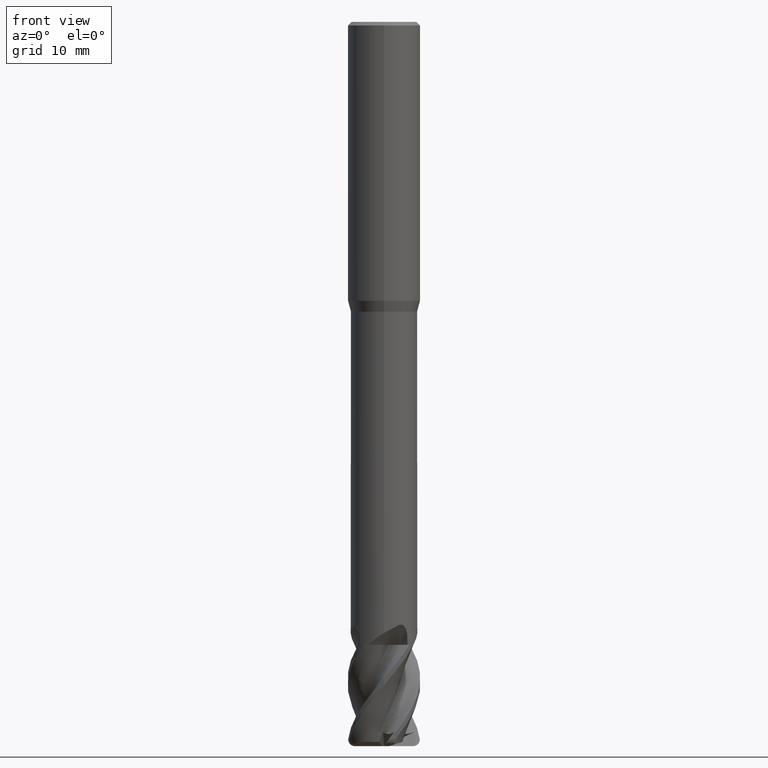
[diagram: clean part render]
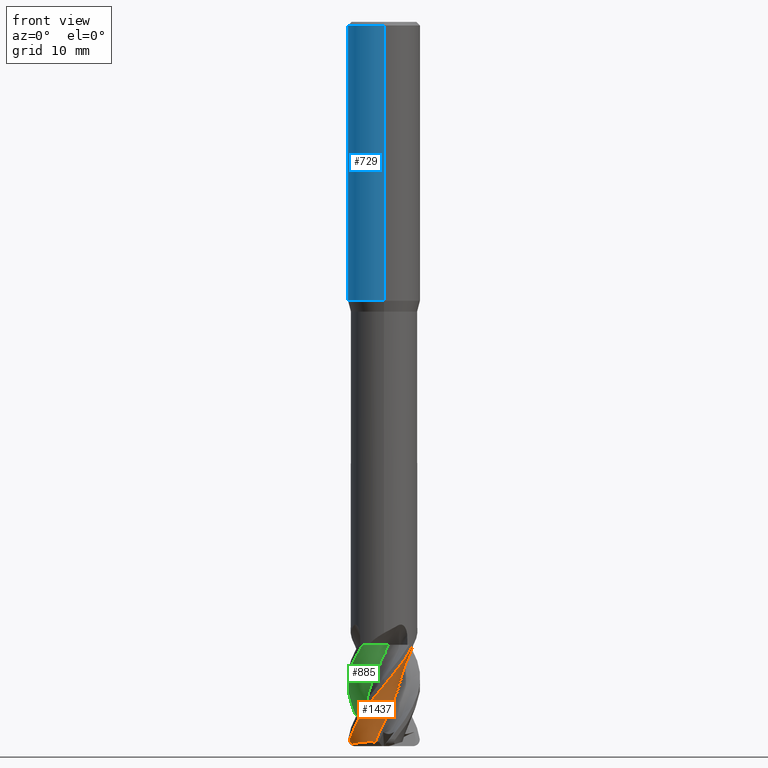
[diagram: same view with three faces highlighted in distinct colors, each labeled with its STEP entity id]
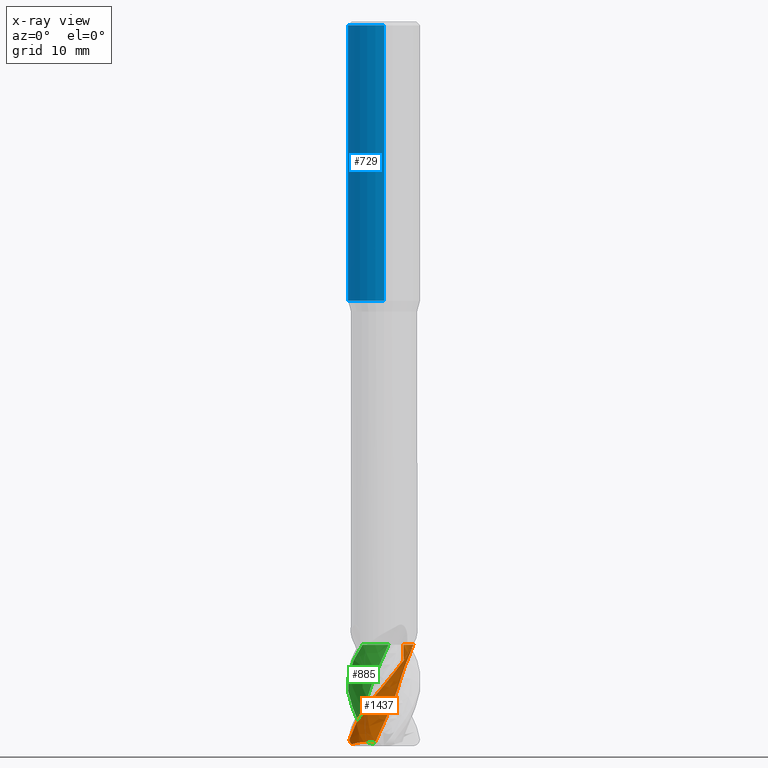
[diagram: x-ray of the same camera — body ghosted, the three highlighted faces saturated]
A machine part, front view with three faces highlighted in distinct colors.
The next image is the same camera in x-ray (body ghosted, the three faces saturated) — at least one of them is partly hidden behind the body in this view.
Their STEP definitions:

[orange] entity #1437 — the highlighted face is a freeform B-spline surface patch.
#543=VERTEX_POINT('',#1570);
#643=EDGE_CURVE('',#699,#1245,#1679,.T.);
#699=VERTEX_POINT('',#1739);
#799=EDGE_CURVE('',#1245,#1503,#1852,.T.);
#809=VERTEX_POINT('',#1862);
#815=EDGE_CURVE('',#809,#851,#1868,.T.);
#851=VERTEX_POINT('',#1907);
#881=EDGE_CURVE('',#1503,#543,#1938,.T.);
#903=VERTEX_POINT('',#1961);
#971=EDGE_CURVE('',#903,#809,#2035,.T.);
#1131=VERTEX_POINT('',#2213);
#1199=EDGE_CURVE('',#1131,#699,#2291,.T.);
#1245=VERTEX_POINT('',#2343);
#1437=ADVANCED_FACE('',(#2552),#2553,.T.);
#1503=VERTEX_POINT('',#2624);
#1515=EDGE_CURVE('',#543,#903,#2636,.T.);
#1529=EDGE_CURVE('',#1131,#851,#2650,.T.);
#1570=CARTESIAN_POINT('',(4.03008679042332,-2.95929053518834,-86.0));
#1679=B_SPLINE_CURVE_WITH_KNOTS('',3,(#3443,#3444,#3445,#3446,#3447,#3448,#3449,#3450,#3451,#3452,#3453,#3454,#3455,#3456,#3457,#3458,#3459,#3460,#3461,#3462),.UNSPECIFIED.,.F.,.F.,(4,2,2,2,2,2,2,2,2,4),(0.0,0.763488793449924,1.73219035654464,2.43699732460714,2.89609081132378,3.19261038726008,3.45818701035075,3.76751912048302,3.91512844483498,4.0350906163038),.UNSPECIFIED.);
#1739=CARTESIAN_POINT('',(-4.43207069036557,-1.4892234138994,-99.7372878029424));
#1852=B_SPLINE_CURVE_WITH_KNOTS('',3,(#4957,#4958,#4959,#4960,#4961,#4962,#4963,#4964,#4965,#4966,#4967,#4968,#4969,#4970,#4971,#4972,#4973,#4974),.UNSPECIFIED.,.F.,.F.,(4,2,2,2,2,2,2,2,4),(0.0,1.63840875826176,2.79192932385943,5.00270083287014,7.47404294648538,8.65860958711604,12.7714476138765,13.857799544153,17.013544255888),.UNSPECIFIED.);
#1862=CARTESIAN_POINT('',(3.55020208636593,-0.450449417946924,-86.0));
#1868=B_SPLINE_CURVE_WITH_KNOTS('',3,(#5001,#5002,#5003,#5004,#5005,#5006,#5007,#5008),.UNSPECIFIED.,.F.,.F.,(4,2,2,4),(0.0,1.55396299500599,2.99562165843262,4.4372465781804),.UNSPECIFIED.);
#1907=CARTESIAN_POINT('',(2.66715525666732,0.617454971103077,-86.0));
#1938=B_SPLINE_CURVE_WITH_KNOTS('',3,(#5767,#5768,#5769,#5770,#5771,#5772,#5773,#5774,#5775,#5776,#5777,#5778,#5779,#5780,#5781,#5782,#5783,#5784),.UNSPECIFIED.,.F.,.F.,(4,2,2,2,2,2,2,2,4),(0.0,1.63840875826176,2.79192932385943,5.00270083287014,7.47404294648538,8.65860958711604,12.7714476138765,13.857799544153,17.013544255888),.UNSPECIFIED.);
#1961=CARTESIAN_POINT('',(4.03047965508527,-2.9564513907315,-86.0));
#2035=B_SPLINE_CURVE_WITH_KNOTS('',3,(#6744,#6745,#6746,#6747,#6748,#6749,#6750,#6751),.UNSPECIFIED.,.F.,.F.,(4,2,2,4),(0.0,1.55396299500599,2.99562165843262,4.4372465781804),.UNSPECIFIED.);
#2213=CARTESIAN_POINT('',(-1.19446032478476,-2.46458393840777,-99.4203739575267));
#2291=B_SPLINE_CURVE_WITH_KNOTS('',3,(#8159,#8160,#8161,#8162,#8163,#8164,#8165,#8166),.UNSPECIFIED.,.F.,.F.,(4,2,2,4),(0.0,1.36063409168119,2.46397720875438,3.66792738705926),.UNSPECIFIED.);
#2343=CARTESIAN_POINT('',(-4.73434387842826,-1.60810075579514,-99.0));
#2552=FACE_OUTER_BOUND('',#9832,.T.);
#2553=B_SPLINE_SURFACE_WITH_KNOTS('',3,3,((#9833,#9834,#9835,#9836,#9837,#9838,#9839,#9840,#9841,#9842,#9843,#9844,#9845,#9846,#9847,#9848,#9849,#9850,#9851,#9852,#9853,#9854,#9855,#9856,#9857,#9858,#9859,#9860,#9861,#9862,#9863,#9864,#9865,#9866,#9867,#9868,#9869,#9870,#9871,#9872),(#9873,#9874,#9875,#9876,#9877,#9878,#9879,#9880,#9881,#9882,#9883,#9884,#9885,#9886,#9887,#9888,#9889,#9890,#9891,#9892,#9893,#9894,#9895,#9896,#9897,#9898,#9899,#9900,#9901,#9902,#9903,#9904,#9905,#9906,#9907,#9908,#9909,#9910,#9911,#9912),(#9913,#9914,#9915,#9916,#9917,#9918,#9919,#9920,#9921,#9922,#9923,#9924,#9925,#9926,#9927,#9928,#9929,#9930,#9931,#9932,#9933,#9934,#9935,#9936,#9937,#9938,#9939,#9940,#9941,#9942,#9943,#9944,#9945,#9946,#9947,#9948,#9949,#9950,#9951,#9952),(#9953,#9954,#9955,#9956,#9957,#9958,#9959,#9960,#9961,#9962,#9963,#9964,#9965,#9966,#9967,#9968,#9969,#9970,#9971,#9972,#9973,#9974,#9975,#9976,#9977,#9978,#9979,#9980,#9981,#9982,#9983,#9984,#9985,#9986,#9987,#9988,#9989,#9990,#9991,#9992),(#9993,#9994,#9995,#9996,#9997,#9998,#9999,#10000,#10001,#10002,#10003,#10004,#10005,#10006,#10007,#10008,#10009,#10010,#10011,#10012,#10013,#10014,#10015,#10016,#10017,#10018,#10019,#10020,#10021,#10022,#10023,#10024,#10025,#10026,#10027,#10028,#10029,#10030,#10031,#10032),(#10033,#10034,#10035,#10036,#10037,#10038,#10039,#10040,#10041,#10042,#10043,#10044,#10045,#10046,#10047,#10048,#10049,#10050,#10051,#10052,#10053,#10054,#10055,#10056,#10057,#10058,#10059,#10060,#10061,#10062,#10063,#10064,#10065,#10066,#10067,#10068,#10069,#10070,#10071,#10072)),.UNSPECIFIED.,.F.,.F.,.F.,(4,1,1,4),(4,1,2,2,1,2,1,1,2,1,1,2,1,1,1,2,1,1,2,1,1,2,1,1,1,2,1,1,4),(-1.11221997675852,-0.695137485474076,-0.27805499418963,0.0),(0.0,0.533111191696942,1.06622238339388,2.13244476678777,3.19866715018165,4.26488953357553,5.33111191696942,6.93044549206024,8.52977906715106,10.1291126422419,11.7284462173327,12.7946686007266,13.8608909841205,14.9271133675144,15.9933357509082,17.0595581343021,18.125780517696,19.7251140927868,21.3244476678777,22.9237812429685,24.5231148180593,25.5893372014532,26.6555595848471,27.721781968241,28.7880043516348,29.8542267350287,30.9204491184226,32.5197826935134,34.1191162686043),.UNSPECIFIED.);
#2624=CARTESIAN_POINT('',(-1.05521507484845E-010,-4.99994321122673,-91.6174594744442));
#2636=B_SPLINE_CURVE_WITH_KNOTS('',3,(#10317,#10318,#10319,#10320,#10321,#10322,#10323,#10324),.UNSPECIFIED.,.F.,.F.,(4,2,2,4),(0.0,1.55396299500599,2.99562165843262,4.4372465781804),.UNSPECIFIED.);
#2650=B_SPLINE_CURVE_WITH_KNOTS('',3,(#10439,#10440,#10441,#10442,#10443,#10444,#10445,#10446,#10447,#10448,#10449,#10450,#10451,#10452,#10453,#10454,#10455,#10456,#10457,#10458,#10459,#10460,#10461,#10462,#10463,#10464,#10465,#10466,#10467,#10468,#10469,#10470,#10471,#10472,#10473,#10474,#10475,#10476,#10477,#10478),.UNSPECIFIED.,.F.,.F.,(4,1,2,2,1,2,1,1,2,1,1,2,1,1,1,2,1,1,2,1,1,2,1,1,1,2,1,1,4),(0.0,0.533111191696942,1.06622238339388,2.13244476678777,3.19866715018165,4.26488953357553,5.33111191696942,6.93044549206024,8.52977906715106,10.1291126422419,11.7284462173327,12.7946686007266,13.8608909841205,14.9271133675144,15.9933357509082,17.0595581343021,18.125780517696,19.7251140927868,21.3244476678777,22.9237812429685,24.5231148180593,25.5893372014532,26.6555595848471,27.721781968241,28.7880043516348,29.8542267350287,30.9204491184226,32.5197826935134,34.1191162686043),.UNSPECIFIED.);
#3443=CARTESIAN_POINT('',(-2.14696270285157,-2.44764908019172,-99.6679912833822));
#3444=CARTESIAN_POINT('',(-2.36665387073516,-2.39471213135761,-99.7850460519226));
#3445=CARTESIAN_POINT('',(-2.6211164543498,-2.32349310829529,-99.8785767427164));
#3446=CARTESIAN_POINT('',(-3.24254281526308,-2.0971812680462,-100.010984271005));
#3447=CARTESIAN_POINT('',(-3.56525231640398,-1.94397179990183,-100.016682474975));
#3448=CARTESIAN_POINT('',(-4.03429176581481,-1.69930413474348,-99.9377956636518));
#3449=CARTESIAN_POINT('',(-4.20444639275503,-1.60364736922407,-99.8773129316793));
#3450=CARTESIAN_POINT('',(-4.43341108465841,-1.48698860332993,-99.7425111886214));
#3451=CARTESIAN_POINT('',(-4.51043862941796,-1.45160690678348,-99.6803712264868));
#3452=CARTESIAN_POINT('',(-4.61336867665619,-1.41859264448835,-99.5658112945777));
#3453=CARTESIAN_POINT('',(-4.6492269730456,-1.41152548301748,-99.5160224306447));
#3454=CARTESIAN_POINT('',(-4.70439682032903,-1.41464912364226,-99.4127809432873));
#3455=CARTESIAN_POINT('',(-4.72391895605735,-1.42307450798984,-99.3623886262469));
#3456=CARTESIAN_POINT('',(-4.7518604909954,-1.45659967944686,-99.2508607348517));
#3457=CARTESIAN_POINT('',(-4.75714400189777,-1.48327325192383,-99.1924394507482));
#3458=CARTESIAN_POINT('',(-4.75390712240745,-1.53087038699453,-99.1100086227459));
#3459=CARTESIAN_POINT('',(-4.75116089886974,-1.54742493618872,-99.0841124114634));
#3460=CARTESIAN_POINT('',(-4.74362727415146,-1.57886554555767,-99.0386640980973));
#3461=CARTESIAN_POINT('',(-4.73931145586733,-1.59351262688722,-99.018789640805));
#3462=CARTESIAN_POINT('',(-4.73419978233395,-1.60852445748509,-98.999453992404));
#4957=CARTESIAN_POINT('',(-4.73434387842826,-1.60810075579512,-99.0));
#4958=CARTESIAN_POINT('',(-4.62303444375741,-1.93579221998651,-98.5775153013168));
#4959=CARTESIAN_POINT('',(-4.47653863804953,-2.25540755864867,-98.1544246077071));
#4960=CARTESIAN_POINT('',(-4.16635259548505,-2.77560889758241,-97.4465840366505));
#4961=CARTESIAN_POINT('',(-4.02709342649443,-2.97386245924106,-97.1757158901166));
#4962=CARTESIAN_POINT('',(-3.56921385320518,-3.53360029346934,-96.3372278996997));
#4963=CARTESIAN_POINT('',(-3.22266902165438,-3.85036491834973,-95.7713601953966));
#4964=CARTESIAN_POINT('',(-2.42234520101053,-4.40406245199541,-94.5810189496928));
#4965=CARTESIAN_POINT('',(-1.94968865427333,-4.63478669772629,-93.9444367140829));
#4966=CARTESIAN_POINT('',(-1.1961840035734,-4.86144895532116,-93.0331906779011));
#4967=CARTESIAN_POINT('',(-0.952267256248903,-4.91524235364122,-92.7536681447416));
#4968=CARTESIAN_POINT('',(0.193164597626811,-5.07627682362047,-91.3987211157282));
#4969=CARTESIAN_POINT('',(1.09738373305841,-4.96021058377933,-90.2755638661122));
#4970=CARTESIAN_POINT('',(2.14629778838148,-4.52206235811942,-88.9479826426303));
#4971=CARTESIAN_POINT('',(2.35133593336551,-4.41877744670287,-88.6909540762101));
#4972=CARTESIAN_POINT('',(3.139901916811,-3.95040148629001,-87.6292153605903));
#4973=CARTESIAN_POINT('',(3.6393751314902,-3.49138859114792,-86.8019928654672));
#4974=CARTESIAN_POINT('',(4.03008679042329,-2.95929053518841,-86.0));
#5001=CARTESIAN_POINT('',(3.94777848146015,-3.38251630279467,-86.0));
#5002=CARTESIAN_POINT('',(4.07407282664945,-2.88016089129059,-86.0));
#5003=CARTESIAN_POINT('',(4.101039869551,-2.35794122182609,-86.0));
#5004=CARTESIAN_POINT('',(3.95861509965705,-1.36961069260038,-86.0));
#5005=CARTESIAN_POINT('',(3.80444525252905,-0.910305924772404,-86.0));
#5006=CARTESIAN_POINT('',(3.33982649968125,-0.0689791335563736,-86.0));
#5007=CARTESIAN_POINT('',(3.03320426690068,0.306122057228406,-86.0));
#5008=CARTESIAN_POINT('',(2.66715525666732,0.617454971103087,-86.0));
#5767=CARTESIAN_POINT('',(-4.73434387842826,-1.60810075579512,-99.0));
#5768=CARTESIAN_POINT('',(-4.62303444375741,-1.93579221998651,-98.5775153013168));
#5769=CARTESIAN_POINT('',(-4.47653863804953,-2.25540755864867,-98.1544246077071));
#5770=CARTESIAN_POINT('',(-4.16635259548505,-2.77560889758241,-97.4465840366505));
#5771=CARTESIAN_POINT('',(-4.02709342649443,-2.97386245924106,-97.1757158901166));
#5772=CARTESIAN_POINT('',(-3.56921385320518,-3.53360029346934,-96.3372278996997));
#5773=CARTESIAN_POINT('',(-3.22266902165438,-3.85036491834973,-95.7713601953966));
#5774=CARTESIAN_POINT('',(-2.42234520101053,-4.40406245199541,-94.5810189496928));
#5775=CARTESIAN_POINT('',(-1.94968865427333,-4.63478669772629,-93.9444367140829));
#5776=CARTESIAN_POINT('',(-1.1961840035734,-4.86144895532116,-93.0331906779011));
#5777=CARTESIAN_POINT('',(-0.952267256248903,-4.91524235364122,-92.7536681447416));
#5778=CARTESIAN_POINT('',(0.193164597626811,-5.07627682362047,-91.3987211157282));
#5779=CARTESIAN_POINT('',(1.09738373305841,-4.96021058377933,-90.2755638661122));
#5780=CARTESIAN_POINT('',(2.14629778838148,-4.52206235811942,-88.9479826426303));
#5781=CARTESIAN_POINT('',(2.35133593336551,-4.41877744670287,-88.6909540762101));
#5782=CARTESIAN_POINT('',(3.139901916811,-3.95040148629001,-87.6292153605903));
#5783=CARTESIAN_POINT('',(3.6393751314902,-3.49138859114792,-86.8019928654672));
#5784=CARTESIAN_POINT('',(4.03008679042329,-2.95929053518841,-86.0));
#6744=CARTESIAN_POINT('',(3.94777848146015,-3.38251630279467,-86.0));
#6745=CARTESIAN_POINT('',(4.07407282664945,-2.88016089129059,-86.0));
#6746=CARTESIAN_POINT('',(4.101039869551,-2.35794122182609,-86.0));
#6747=CARTESIAN_POINT('',(3.95861509965705,-1.36961069260038,-86.0));
#6748=CARTESIAN_POINT('',(3.80444525252905,-0.910305924772404,-86.0));
#6749=CARTESIAN_POINT('',(3.33982649968125,-0.0689791335563736,-86.0));
#6750=CARTESIAN_POINT('',(3.03320426690068,0.306122057228406,-86.0));
#6751=CARTESIAN_POINT('',(2.66715525666732,0.617454971103087,-86.0));
#8159=CARTESIAN_POINT('',(-1.19446032484925,-2.46458393835482,-99.4203739576188));
#8160=CARTESIAN_POINT('',(-1.63759275941787,-2.55648000648669,-99.3905151150763));
#8161=CARTESIAN_POINT('',(-2.09157069735316,-2.56783953796671,-99.3868241796174));
#8162=CARTESIAN_POINT('',(-2.89878484355702,-2.42844828787919,-99.4321151422534));
#8163=CARTESIAN_POINT('',(-3.24476363260264,-2.30960509695778,-99.4707296356821));
#8164=CARTESIAN_POINT('',(-3.91555887585956,-1.95336994405424,-99.586477453351));
#8165=CARTESIAN_POINT('',(-4.22713370161317,-1.71071857019856,-99.6653196640406));
#8166=CARTESIAN_POINT('',(-4.49325387717374,-1.42514556365913,-99.7581079585777));
#9832=EDGE_LOOP('',(#11541,#11542,#11543,#11544,#11545,#11546,#11547,#11548));
#9833=CARTESIAN_POINT('',(-0.212880755921785,5.19564065181808,-110.0));
#9834=CARTESIAN_POINT('',(-0.191545450198991,5.19601170504046,-109.822921073161));
#9835=CARTESIAN_POINT('',(-0.254997401588736,5.19466936278814,-109.468776580825));
#9836=CARTESIAN_POINT('',(-0.534097206601835,5.17474888347296,-109.114637380673));
#9837=CARTESIAN_POINT('',(-1.10899720047572,5.09307786472242,-108.583364317521));
#9838=CARTESIAN_POINT('',(-1.43887356418369,5.00434016001582,-108.229169436411));
#9839=CARTESIAN_POINT('',(-2.00952971756008,4.80382860739224,-107.520838813393));
#9840=CARTESIAN_POINT('',(-2.56106462704611,4.55457563368301,-106.812513279083));
#9841=CARTESIAN_POINT('',(-3.07719797114485,4.20199652990447,-106.104192227707));
#9842=CARTESIAN_POINT('',(-3.57115472842145,3.7913574650734,-105.395859336741));
#9843=CARTESIAN_POINT('',(-4.12106018867106,3.23814208675827,-104.510427092286));
#9844=CARTESIAN_POINT('',(-4.76250030019071,2.22587973870981,-103.093756080634));
#9845=CARTESIAN_POINT('',(-5.04657537549154,1.33876161412757,-102.031286415814));
#9846=CARTESIAN_POINT('',(-5.20749837320416,0.378102808005651,-100.968783005532));
#9847=CARTESIAN_POINT('',(-5.22795937268072,-0.552963521057884,-99.9062501847433));
#9848=CARTESIAN_POINT('',(-4.95018851485183,-1.72256418740385,-98.4895922595851));
#9849=CARTESIAN_POINT('',(-4.60705985665225,-2.42964545705149,-97.604193888517));
#9850=CARTESIAN_POINT('',(-4.26960504580663,-2.98316772152028,-96.8958609987699));
#9851=CARTESIAN_POINT('',(-3.89249811293236,-3.48656393986093,-96.1875137101225));
#9852=CARTESIAN_POINT('',(-3.2303940304498,-4.10640653560016,-95.1250009921874));
#9853=CARTESIAN_POINT('',(-2.47205501382419,-4.6038526746645,-94.0625135741522));
#9854=CARTESIAN_POINT('',(-1.89408474803594,-4.85186725501041,-93.3541941683433));
#9855=CARTESIAN_POINT('',(-1.27674265971293,-5.04963160999095,-92.6458604139133));
#9856=CARTESIAN_POINT('',(-0.508674667578911,-5.21673237228439,-91.760424943389));
#9857=CARTESIAN_POINT('',(0.693438143396908,-5.21106874684913,-90.3437464700358));
#9858=CARTESIAN_POINT('',(1.59256478397458,-4.97222727471754,-89.2812755838609));
#9859=CARTESIAN_POINT('',(2.48692046909455,-4.59080163239005,-88.2187753354462));
#9860=CARTESIAN_POINT('',(3.28180412953648,-4.10696226299668,-87.1562455874301));
#9861=CARTESIAN_POINT('',(4.11807208411942,-3.24247188793053,-85.7395889008956));
#9862=CARTESIAN_POINT('',(4.52911059677187,-2.57203790926344,-84.8541892217347));
#9863=CARTESIAN_POINT('',(4.81367440789519,-1.98934099446754,-84.1458546273826));
#9864=CARTESIAN_POINT('',(5.03447558153229,-1.40054871081758,-83.4375062431678));
#9865=CARTESIAN_POINT('',(5.19983481543386,-0.509413547387122,-82.3749941723748));
#9866=CARTESIAN_POINT('',(5.21045415859259,0.39708936380917,-81.312509732606));
#9867=CARTESIAN_POINT('',(5.10804312303886,1.01800173185388,-80.6041936371242));
#9868=CARTESIAN_POINT('',(4.9418155458113,1.64549281459026,-79.8958635795382));
#9869=CARTESIAN_POINT('',(4.66820179182286,2.38381674270684,-79.0104293392831));
#9870=CARTESIAN_POINT('',(4.01540947410099,3.39258405098369,-77.5937433076653));
#9871=CARTESIAN_POINT('',(3.33471657211654,4.01676857963547,-76.5312669464229));
#9872=CARTESIAN_POINT('',(2.93810951804706,4.2884391108022,-76.0000173893713));
#9873=CARTESIAN_POINT('',(-0.698890583402487,4.93170831188153,-110.0));
#9874=CARTESIAN_POINT('',(-0.677854357252116,4.93263009617096,-109.82292295979));
#9875=CARTESIAN_POINT('',(-0.737116714874862,4.92326774583871,-109.468858273003));
#9876=CARTESIAN_POINT('',(-1.0009152561485,4.87750162309017,-109.114837837721));
#9877=CARTESIAN_POINT('',(-1.54137925085135,4.74587889553126,-108.583491184082));
#9878=CARTESIAN_POINT('',(-1.84737569768814,4.63013231108458,-108.229185474992));
#9879=CARTESIAN_POINT('',(-2.37178446377649,4.38469090686308,-107.520860320188));
#9880=CARTESIAN_POINT('',(-2.87331318599875,4.09463989343061,-106.812564184229));
#9881=CARTESIAN_POINT('',(-3.33142641602983,3.70966163025709,-106.104293300917));
#9882=CARTESIAN_POINT('',(-3.76306259952707,3.27155320698191,-105.395965184765));
#9883=CARTESIAN_POINT('',(-4.2342563922064,2.69219988970913,-104.510477174925));
#9884=CARTESIAN_POINT('',(-4.74842057478127,1.66678612075495,-103.093791303472));
#9885=CARTESIAN_POINT('',(-4.93452248486523,0.794728973743362,-102.031435976876));
#9886=CARTESIAN_POINT('',(-4.99676567408118,-0.135821408248264,-100.968920559344));
#9887=CARTESIAN_POINT('',(-4.92754278013757,-1.02471121076404,-99.9062656937224));
#9888=CARTESIAN_POINT('',(-4.55122970476845,-2.11211800397034,-98.4896431675592));
#9889=CARTESIAN_POINT('',(-4.15711613319217,-2.75305847478471,-97.6043151969063));
#9890=CARTESIAN_POINT('',(-3.78311048141173,-3.24843679342309,-96.8959852211994));
#9891=CARTESIAN_POINT('',(-3.37597355902731,-3.69213043121298,-96.1875866305401));
#9892=CARTESIAN_POINT('',(-2.68615959872416,-4.21931297419949,-95.1250277375781));
#9893=CARTESIAN_POINT('',(-1.91638416081815,-4.62072593680893,-94.0625891763318));
#9894=CARTESIAN_POINT('',(-1.34221450158028,-4.80202333980245,-93.3543231880261));
#9895=CARTESIAN_POINT('',(-0.73527682736049,-4.93190618912927,-92.6459888367445));
#9896=CARTESIAN_POINT('',(0.0123257436558057,-5.01803546027523,-91.7604840155555));
#9897=CARTESIAN_POINT('',(1.15672247430266,-4.89776598717778,-90.3437632968952));
#9898=CARTESIAN_POINT('',(1.99040775347875,-4.58461953349799,-89.2814035537165));
#9899=CARTESIAN_POINT('',(2.80635180276891,-4.13639937487065,-88.2189040952524));
#9900=CARTESIAN_POINT('',(3.51745492737685,-3.59974895415921,-87.1562642891235));
#9901=CARTESIAN_POINT('',(4.23133430116956,-2.69648792384821,-85.7396473698311));
#9902=CARTESIAN_POINT('',(4.55913852685629,-2.01873483750826,-84.854312741094));
#9903=CARTESIAN_POINT('',(4.77500749434738,-1.43657506353598,-84.1459743198698));
#9904=CARTESIAN_POINT('',(4.92934700512446,-0.85465499129842,-83.4375701287285));
#9905=CARTESIAN_POINT('',(5.00177096142544,0.0099187649349376,-82.3750139643249));
#9906=CARTESIAN_POINT('',(4.9253517872834,0.874343176995362,-81.3125897580723));
#9907=CARTESIAN_POINT('',(4.76874913514683,1.45609717277876,-80.6043402053322));
#9908=CARTESIAN_POINT('',(4.55087825702938,2.03819549469218,-79.8960245072937));
#9909=CARTESIAN_POINT('',(4.21999913044783,2.71555340592927,-79.0105273155204));
#9910=CARTESIAN_POINT('',(3.50185376614619,3.61396476741456,-77.5937647041357));
#9911=CARTESIAN_POINT('',(2.79399871343359,4.14361026678824,-76.531352335936));
#9912=CARTESIAN_POINT('',(2.39035319083175,4.36478591291926,-76.000082766801));
#9913=CARTESIAN_POINT('',(-1.5589861157218,4.19837080486292,-110.0));
#9914=CARTESIAN_POINT('',(-1.53878088448303,4.20026722419521,-109.822926309318));
#9915=CARTESIAN_POINT('',(-1.58627330488605,4.17664167402808,-109.46900331146));
#9916=CARTESIAN_POINT('',(-1.80854311749472,4.08567170355595,-109.115193732384));
#9917=CARTESIAN_POINT('',(-2.25902072180268,3.86874133922818,-108.583716427436));
#9918=CARTESIAN_POINT('',(-2.50584362890785,3.70909446614439,-108.229213943548));
#9919=CARTESIAN_POINT('',(-2.91877421361125,3.39338341939652,-107.520898510464));
#9920=CARTESIAN_POINT('',(-3.30305721259495,3.04291444068553,-106.81265455977));
#9921=CARTESIAN_POINT('',(-3.63145451385748,2.61770185329666,-106.104472746731));
#9922=CARTESIAN_POINT('',(-3.92686179770615,2.15103541339653,-105.39615311118));
#9923=CARTESIAN_POINT('',(-4.22961666925803,1.55272078822622,-104.510566083251));
#9924=CARTESIAN_POINT('',(-4.48373380384667,0.554857728779262,-103.093853837773));
#9925=CARTESIAN_POINT('',(-4.48031416835157,-0.245636254412907,-102.031701503902));
#9926=CARTESIAN_POINT('',(-4.3579889841411,-1.07423772727393,-100.96916478199));
#9927=CARTESIAN_POINT('',(-4.12729034980816,-1.84085484147597,-99.9062932156181));
#9928=CARTESIAN_POINT('',(-3.58871970578857,-2.72222820053675,-98.4897335413194));
#9929=CARTESIAN_POINT('',(-3.12064601689372,-3.20935268652889,-97.6045305858277));
#9930=CARTESIAN_POINT('',(-2.69815722013509,-3.5730110460586,-96.8962057527665));
#9931=CARTESIAN_POINT('',(-2.25623490584042,-3.88462702885683,-96.1877161207095));
#9932=CARTESIAN_POINT('',(-1.55021771067032,-4.21481636433561,-95.1250752315746));
#9933=CARTESIAN_POINT('',(-0.798204205239147,-4.4193764970495,-94.0627234251164));
#9934=CARTESIAN_POINT('',(-0.259859646055751,-4.46888348959672,-93.3545521700286));
#9935=CARTESIAN_POINT('',(0.297556300471116,-4.46744182557346,-92.6462169234815));
#9936=CARTESIAN_POINT('',(0.969982585830458,-4.40033011922741,-91.7605888453386));
#9937=CARTESIAN_POINT('',(1.95049222590986,-4.07532876855189,-90.3437931547364));
#9938=CARTESIAN_POINT('',(2.62189404802503,-3.64129868733496,-89.2816307608552));
#9939=CARTESIAN_POINT('',(3.25279854440408,-3.09269906930421,-88.2191326912636));
#9940=CARTESIAN_POINT('',(3.77404318440438,-2.48590002525673,-87.1562974680252));
#9941=CARTESIAN_POINT('',(4.22680886874198,-1.55689738410051,-85.7397511317578));
#9942=CARTESIAN_POINT('',(4.38509306245883,-0.89972383154351,-84.854532092539));
#9943=CARTESIAN_POINT('',(4.46383666267404,-0.347700688594768,-84.1461867717742));
#9944=CARTESIAN_POINT('',(4.48819620836785,0.192360838388474,-83.4376835638108));
#9945=CARTESIAN_POINT('',(4.38603714102293,0.964508144286466,-82.375049125167));
#9946=CARTESIAN_POINT('',(4.15339006561019,1.70797503735285,-81.3127318832795));
#9947=CARTESIAN_POINT('',(3.9050001221994,2.18850669754664,-80.6046003628435));
#9948=CARTESIAN_POINT('',(3.60307479227817,2.65799535391742,-79.8963102844477));
#9949=CARTESIAN_POINT('',(3.18348868789076,3.18922702119194,-79.0107012549483));
#9950=CARTESIAN_POINT('',(2.38136065824154,3.83933728396557,-77.5938027717906));
#9951=CARTESIAN_POINT('',(1.65919250302032,4.16846439169785,-76.5315037260897));
#9952=CARTESIAN_POINT('',(1.26283662967108,4.28569979056094,-76.0001988392481));
#9953=CARTESIAN_POINT('',(-2.21119471368568,2.83975856646554,-110.0));
#9954=CARTESIAN_POINT('',(-2.19252901952595,2.842394048419,-109.822928881828));
#9955=CARTESIAN_POINT('',(-2.217968058685,2.80774139212306,-109.469114700115));
#9956=CARTESIAN_POINT('',(-2.36519273387927,2.68410716727217,-109.115467058594));
#9957=CARTESIAN_POINT('',(-2.65988939804032,2.41180885687525,-108.583889412394));
#9958=CARTESIAN_POINT('',(-2.81086307408757,2.23062009127088,-108.229235810958));
#9959=CARTESIAN_POINT('',(-3.04993993798949,1.88948364376986,-107.520927836775));
#9960=CARTESIAN_POINT('',(-3.25866157866819,1.52871419275469,-106.812723970138));
#9961=CARTESIAN_POINT('',(-3.40720182586039,1.12454176655377,-106.104610559449));
#9962=CARTESIAN_POINT('',(-3.52112161327382,0.696667386716712,-105.396297438878));
#9963=CARTESIAN_POINT('',(-3.60831116994689,0.166245616239999,-104.510634368171));
#9964=CARTESIAN_POINT('',(-3.56032619630559,-0.657533193049065,-103.0939018625));
#9965=CARTESIAN_POINT('',(-3.3645518221306,-1.26839770020982,-102.031905436671));
#9966=CARTESIAN_POINT('',(-3.07232681423747,-1.87300674195024,-100.969352334953));
#9967=CARTESIAN_POINT('',(-2.71085814764092,-2.40333421924971,-99.9063143616089));
#9968=CARTESIAN_POINT('',(-2.08581960493855,-2.94589437842755,-98.4898029511575));
#9969=CARTESIAN_POINT('',(-1.61069658716453,-3.20556303886533,-97.6046959936069));
#9970=CARTESIAN_POINT('',(-1.20027578533127,-3.38246475616034,-96.8963751301931));
#9971=CARTESIAN_POINT('',(-0.787311674519091,-3.51428884218568,-96.1878155536775));
#9972=CARTESIAN_POINT('',(-0.167976932607796,-3.59559645192057,-95.125111697262));
#9973=CARTESIAN_POINT('',(0.456027703940811,-3.56979702265033,-94.0628265128023));
#9974=CARTESIAN_POINT('',(0.879497722744425,-3.47801245005719,-93.3547280768606));
#9975=CARTESIAN_POINT('',(1.30559514329036,-3.34324727146496,-92.6463920436371));
#9976=CARTESIAN_POINT('',(1.80358971111952,-3.12995767119702,-91.7606693886521));
#9977=CARTESIAN_POINT('',(2.47371246318173,-2.64394254843896,-90.3438161031665));
#9978=CARTESIAN_POINT('',(2.88198460949935,-2.15024008984777,-89.2818052285809));
#9979=CARTESIAN_POINT('',(3.23309879888303,-1.57925684113158,-88.2193082785424));
#9980=CARTESIAN_POINT('',(3.48501246820632,-0.989528044298553,-87.1563229579606));
#9981=CARTESIAN_POINT('',(3.60558250627052,-0.170224617098704,-85.7398308521362));
#9982=CARTESIAN_POINT('',(3.56834707171613,0.370273185201313,-84.8547005131516));
#9983=CARTESIAN_POINT('',(3.49622260312971,0.811473383591496,-84.1463499744124));
#9984=CARTESIAN_POINT('',(3.38475725067517,1.23028394981883,-83.4377706690525));
#9985=CARTESIAN_POINT('',(3.11972521271943,1.79544133641777,-82.3750761150066));
#9986=CARTESIAN_POINT('',(2.7619944279815,2.30705712095627,-81.3128410128158));
#9987=CARTESIAN_POINT('',(2.45640871125566,2.61461077483516,-80.6048001913444));
#9988=CARTESIAN_POINT('',(2.11286611612596,2.90141868504345,-79.8965297316094));
#9989=CARTESIAN_POINT('',(1.66410021625152,3.20660040862292,-79.0108348412534));
#9990=CARTESIAN_POINT('',(0.893755256401319,3.50866599362145,-77.5938319717138));
#9991=CARTESIAN_POINT('',(0.262478143154508,3.58563549929028,-76.531620100201));
#9992=CARTESIAN_POINT('',(-0.0688339727390955,3.58011020141421,-76.0002879824257));
#9993=CARTESIAN_POINT('',(-2.30394249606448,1.91358979082734,-110.0));
#9994=CARTESIAN_POINT('',(-2.28632630774119,1.91633037069722,-109.822929277232));
#9995=CARTESIAN_POINT('',(-2.29663884048103,1.87991656096859,-109.46913182482));
#9996=CARTESIAN_POINT('',(-2.39341265744185,1.75311115934331,-109.115509079785));
#9997=CARTESIAN_POINT('',(-2.58599971943972,1.48145199408681,-108.583916006413));
#9998=CARTESIAN_POINT('',(-2.67678347090913,1.30792926006928,-108.229239172956));
#9999=CARTESIAN_POINT('',(-2.80955898687712,0.988622363941393,-107.520932345253));
#10000=CARTESIAN_POINT('',(-2.91417124017264,0.658824320863405,-106.81273464275));
#10001=CARTESIAN_POINT('',(-2.96270440623527,0.304725689082053,-106.104631743722));
#10002=CARTESIAN_POINT('',(-2.97940682366733,-0.0624239064006965,-105.396319630614));
#10003=CARTESIAN_POINT('',(-2.95571660300933,-0.508050482744109,-104.510644864239));
#10004=CARTESIAN_POINT('',(-2.76895481194494,-1.16715866784989,-103.093909245848));
#10005=CARTESIAN_POINT('',(-2.50140144899283,-1.62742590723101,-102.031936789647));
#10006=CARTESIAN_POINT('',(-2.15766885594447,-2.06621086057736,-100.969381168637));
#10007=CARTESIAN_POINT('',(-1.77000205174244,-2.43180984405476,-99.9063176162497));
#10008=CARTESIAN_POINT('',(-1.16606913207932,-2.75943507969782,-98.4898136209529));
#10009=CARTESIAN_POINT('',(-0.734728165197927,-2.88554566923709,-97.6047214264626));
#10010=CARTESIAN_POINT('',(-0.370623625550761,-2.95654550858245,-96.8964011669141));
#10011=CARTESIAN_POINT('',(-0.0123172960007083,-2.99006694472388,-96.1878308395108));
#10012=CARTESIAN_POINT('',(0.504299400776864,-2.94510416310845,-95.1251173098771));
#10013=CARTESIAN_POINT('',(1.00548801603419,-2.81248786420322,-94.0628423703448));
#10014=CARTESIAN_POINT('',(1.33251577437287,-2.66284003970124,-93.3547551077633));
#10015=CARTESIAN_POINT('',(1.65429971108819,-2.47829949356006,-92.6464189793034));
#10016=CARTESIAN_POINT('',(2.02024109078895,-2.21684505399636,-91.7606817539459));
#10017=CARTESIAN_POINT('',(2.47624436397942,-1.70266659078517,-90.3438196182954));
#10018=CARTESIAN_POINT('',(2.71916789029669,-1.22969881699076,-89.2818320649098));
#10019=CARTESIAN_POINT('',(2.9031079175851,-0.704609078145702,-88.2193352593548));
#10020=CARTESIAN_POINT('',(3.00222503498259,-0.181481554009978,-87.1563268823069));
#10021=CARTESIAN_POINT('',(2.95299229740801,0.504202871456189,-85.7398430966861));
#10022=CARTESIAN_POINT('',(2.82678471246147,0.935798512888754,-84.8547264255013));
#10023=CARTESIAN_POINT('',(2.69038351724211,1.28089335561616,-84.1463750455266));
#10024=CARTESIAN_POINT('',(2.52557130416228,1.60070975799145,-83.4377840695745));
#10025=CARTESIAN_POINT('',(2.20953318782462,2.01139473716983,-82.3750802680048));
#10026=CARTESIAN_POINT('',(1.8279718374947,2.36205619727093,-81.3128577929848));
#10027=CARTESIAN_POINT('',(1.52558357646961,2.55712991376465,-80.604830908866));
#10028=CARTESIAN_POINT('',(1.19632650624692,2.72910288722503,-79.896563473153));
#10029=CARTESIAN_POINT('',(0.778196491908826,2.89688479940971,-79.0108553549237));
#10030=CARTESIAN_POINT('',(0.0995637448469687,3.00354478604781,-77.5938364665965));
#10031=CARTESIAN_POINT('',(-0.42586206223619,2.95322756107339,-76.5316379769609));
#10032=CARTESIAN_POINT('',(-0.693567026784992,2.89011066293641,-76.000301687216));
#10033=CARTESIAN_POINT('',(-2.28963209410875,1.54516668842389,-110.0));
#10034=CARTESIAN_POINT('',(-2.27243339143777,1.54789105312952,-109.822929236957));
#10035=CARTESIAN_POINT('',(-2.27671522573982,1.51161431295414,-109.469130078835));
#10036=CARTESIAN_POINT('',(-2.35352303213235,1.38632638722857,-109.115504795201));
#10037=CARTESIAN_POINT('',(-2.50608634539226,1.12050721890471,-108.583913295148));
#10038=CARTESIAN_POINT('',(-2.57367654146409,0.953286613500553,-108.229238830236));
#10039=CARTESIAN_POINT('',(-2.66594375716846,0.648362387018866,-107.520931885504));
#10040=CARTESIAN_POINT('',(-2.73140804790596,0.336413484435909,-106.812733553959));
#10041=CARTESIAN_POINT('',(-2.74344824991202,0.00743352143074563,-106.104629585088));
#10042=CARTESIAN_POINT('',(-2.72533515363679,-0.330571610648912,-105.396317366653));
#10043=CARTESIAN_POINT('',(-2.66278705826968,-0.736862779008587,-104.510643795112));
#10044=CARTESIAN_POINT('',(-2.43059528310644,-1.32377251774003,-103.093908494911));
#10045=CARTESIAN_POINT('',(-2.14312557454905,-1.72102976434806,-102.031933589688));
#10046=CARTESIAN_POINT('',(-1.78826282464492,-2.09194067000029,-100.969378231994));
#10047=CARTESIAN_POINT('',(-1.39933505974508,-2.39148081391437,-99.9063172807188));
#10048=CARTESIAN_POINT('',(-0.815447165474006,-2.6359399630309,-98.4898125337973));
#10049=CARTESIAN_POINT('',(-0.40859305141722,-2.71205076793275,-97.6047188318132));
#10050=CARTESIAN_POINT('',(-0.0684557236212588,-2.74403937313193,-96.8963985137498));
#10051=CARTESIAN_POINT('',(0.263026884328321,-2.74198742916347,-96.1878292817798));
#10052=CARTESIAN_POINT('',(0.732434395585889,-2.65310992192513,-95.1251167335774));
#10053=CARTESIAN_POINT('',(1.17959400619334,-2.48531085263667,-94.0628407495212));
#10054=CARTESIAN_POINT('',(1.46561909406563,-2.31824166482224,-93.3547523565621));
#10055=CARTESIAN_POINT('',(1.74375509884639,-2.11988357152769,-92.6464162281023));
#10056=CARTESIAN_POINT('',(2.05525411187739,-1.84676182356229,-91.7606804992409));
#10057=CARTESIAN_POINT('',(2.42571433609204,-1.33325499055764,-90.3438192675192));
#10058=CARTESIAN_POINT('',(2.60490473795196,-0.877472469122831,-89.281829321325));
#10059=CARTESIAN_POINT('',(2.7257725837089,-0.379538000389293,-88.2193325157699));
#10060=CARTESIAN_POINT('',(2.76859152423723,0.109097365150498,-87.1563264800329));
#10061=CARTESIAN_POINT('',(2.66005727243173,0.733066953481082,-85.7398418501745));
#10062=CARTESIAN_POINT('',(2.50490598332421,1.11706893129815,-84.8547237795645));
#10063=CARTESIAN_POINT('',(2.34854890411273,1.42094221646516,-84.1463724932135));
#10064=CARTESIAN_POINT('',(2.16822684324508,1.69900201829688,-83.4377827007988));
#10065=CARTESIAN_POINT('',(1.84063394508397,2.04629380123624,-82.3750798423888));
#10066=CARTESIAN_POINT('',(1.4585338727942,2.33250665840769,-81.3128560835986));
#10067=CARTESIAN_POINT('',(1.16355691033106,2.48362827035255,-80.604827774896));
#10068=CARTESIAN_POINT('',(0.846190011608393,2.61133217941648,-79.8965600349057));
#10069=CARTESIAN_POINT('',(0.447599754835369,2.7268875561504,-79.0108532733666));
#10070=CARTESIAN_POINT('',(-0.184357212848967,2.76190787509729,-77.5938360057183));
#10071=CARTESIAN_POINT('',(-0.661288988442121,2.66744871726789,-76.5316361583206));
#10072=CARTESIAN_POINT('',(-0.900887727108747,2.58521970340524,-76.0003002898828));
#10317=CARTESIAN_POINT('',(3.94777848146015,-3.38251630279467,-86.0));
#10318=CARTESIAN_POINT('',(4.07407282664945,-2.88016089129059,-86.0));
#10319=CARTESIAN_POINT('',(4.101039869551,-2.35794122182609,-86.0));
#10320=CARTESIAN_POINT('',(3.95861509965705,-1.36961069260038,-86.0));
#10321=CARTESIAN_POINT('',(3.80444525252905,-0.910305924772404,-86.0));
#10322=CARTESIAN_POINT('',(3.33982649968125,-0.0689791335563736,-86.0));
#10323=CARTESIAN_POINT('',(3.03320426690068,0.306122057228406,-86.0));
#10324=CARTESIAN_POINT('',(2.66715525666732,0.617454971103087,-86.0));
#10439=CARTESIAN_POINT('',(-2.28963209410875,1.54516668842389,-110.0));
#10440=CARTESIAN_POINT('',(-2.27243339143777,1.54789105312952,-109.822929236957));
#10441=CARTESIAN_POINT('',(-2.27671522573982,1.51161431295414,-109.469130078835));
#10442=CARTESIAN_POINT('',(-2.35352303213235,1.38632638722857,-109.115504795201));
#10443=CARTESIAN_POINT('',(-2.50608634539226,1.12050721890471,-108.583913295148));
#10444=CARTESIAN_POINT('',(-2.57367654146409,0.953286613500553,-108.229238830236));
#10445=CARTESIAN_POINT('',(-2.66594375716846,0.648362387018866,-107.520931885504));
#10446=CARTESIAN_POINT('',(-2.73140804790596,0.336413484435909,-106.812733553959));
#10447=CARTESIAN_POINT('',(-2.74344824991202,0.00743352143074563,-106.104629585088));
#10448=CARTESIAN_POINT('',(-2.72533515363679,-0.330571610648912,-105.396317366653));
#10449=CARTESIAN_POINT('',(-2.66278705826968,-0.736862779008587,-104.510643795112));
#10450=CARTESIAN_POINT('',(-2.43059528310644,-1.32377251774003,-103.093908494911));
#10451=CARTESIAN_POINT('',(-2.14312557454905,-1.72102976434806,-102.031933589688));
#10452=CARTESIAN_POINT('',(-1.78826282464492,-2.09194067000029,-100.969378231994));
#10453=CARTESIAN_POINT('',(-1.39933505974508,-2.39148081391437,-99.9063172807188));
#10454=CARTESIAN_POINT('',(-0.815447165474006,-2.6359399630309,-98.4898125337973));
#10455=CARTESIAN_POINT('',(-0.40859305141722,-2.71205076793275,-97.6047188318132));
#10456=CARTESIAN_POINT('',(-0.0684557236212588,-2.74403937313193,-96.8963985137498));
#10457=CARTESIAN_POINT('',(0.263026884328321,-2.74198742916347,-96.1878292817798));
#10458=CARTESIAN_POINT('',(0.732434395585889,-2.65310992192513,-95.1251167335774));
#10459=CARTESIAN_POINT('',(1.17959400619334,-2.48531085263667,-94.0628407495212));
#10460=CARTESIAN_POINT('',(1.46561909406563,-2.31824166482224,-93.3547523565621));
#10461=CARTESIAN_POINT('',(1.74375509884639,-2.11988357152769,-92.6464162281023));
#10462=CARTESIAN_POINT('',(2.05525411187739,-1.84676182356229,-91.7606804992409));
#10463=CARTESIAN_POINT('',(2.42571433609204,-1.33325499055764,-90.3438192675192));
#10464=CARTESIAN_POINT('',(2.60490473795196,-0.877472469122831,-89.281829321325));
#10465=CARTESIAN_POINT('',(2.7257725837089,-0.379538000389293,-88.2193325157699));
#10466=CARTESIAN_POINT('',(2.76859152423723,0.109097365150498,-87.1563264800329));
#10467=CARTESIAN_POINT('',(2.66005727243173,0.733066953481082,-85.7398418501745));
#10468=CARTESIAN_POINT('',(2.50490598332421,1.11706893129815,-84.8547237795645));
#10469=CARTESIAN_POINT('',(2.34854890411273,1.42094221646516,-84.1463724932135));
#10470=CARTESIAN_POINT('',(2.16822684324508,1.69900201829688,-83.4377827007988));
#10471=CARTESIAN_POINT('',(1.84063394508397,2.04629380123624,-82.3750798423888));
#10472=CARTESIAN_POINT('',(1.4585338727942,2.33250665840769,-81.3128560835986));
#10473=CARTESIAN_POINT('',(1.16355691033106,2.48362827035255,-80.604827774896));
#10474=CARTESIAN_POINT('',(0.846190011608393,2.61133217941648,-79.8965600349057));
#10475=CARTESIAN_POINT('',(0.447599754835369,2.7268875561504,-79.0108532733666));
#10476=CARTESIAN_POINT('',(-0.184357212848967,2.76190787509729,-77.5938360057183));
#10477=CARTESIAN_POINT('',(-0.661288988442121,2.66744871726789,-76.5316361583206));
#10478=CARTESIAN_POINT('',(-0.900887727108747,2.58521970340524,-76.0003002898828));
#11541=ORIENTED_EDGE('',*,*,#799,.F.);
#11542=ORIENTED_EDGE('',*,*,#643,.F.);
#11543=ORIENTED_EDGE('',*,*,#1199,.F.);
#11544=ORIENTED_EDGE('',*,*,#1529,.T.);
#11545=ORIENTED_EDGE('',*,*,#815,.F.);
#11546=ORIENTED_EDGE('',*,*,#971,.F.);
#11547=ORIENTED_EDGE('',*,*,#1515,.F.);
#11548=ORIENTED_EDGE('',*,*,#881,.F.);

[blue] entity #729 — the highlighted cylindrical surface (edge-blend (fillet) strip) has radius 5 mm, axis along (-0, -0, 1).
#541=EDGE_CURVE('',#789,#571,#1568,.T.);
#569=VERTEX_POINT('',#1598);
#571=VERTEX_POINT('',#1600);
#595=VERTEX_POINT('',#1627);
#647=EDGE_CURVE('',#843,#871,#1683,.T.);
#691=EDGE_CURVE('',#853,#789,#1730,.T.);
#701=EDGE_CURVE('',#1231,#1133,#1741,.T.);
#729=ADVANCED_FACE('',(#1774,#1775,#1776),#1777,.T.);
#789=VERTEX_POINT('',#1842);
#819=EDGE_CURVE('',#1307,#595,#1872,.T.);
#843=VERTEX_POINT('',#1899);
#853=VERTEX_POINT('',#1909);
#871=VERTEX_POINT('',#1928);
#877=EDGE_CURVE('',#1231,#595,#1934,.T.);
#1077=VERTEX_POINT('',#2151);
#1079=EDGE_CURVE('',#569,#1077,#2153,.T.);
#1133=VERTEX_POINT('',#2215);
#1193=EDGE_CURVE('',#1539,#843,#2284,.T.);
#1207=EDGE_CURVE('',#571,#569,#2300,.T.);
#1231=VERTEX_POINT('',#2328);
#1307=VERTEX_POINT('',#2415);
#1345=EDGE_CURVE('',#1077,#853,#2454,.T.);
#1417=EDGE_CURVE('',#871,#1539,#2530,.T.);
#1435=EDGE_CURVE('',#1133,#1307,#2550,.T.);
#1539=VERTEX_POINT('',#2660);
#1568=CIRCLE('',#2683,5.0);
#1598=CARTESIAN_POINT('',(-0.022360623872783,4.99995,-30.1708252748463));
#1600=CARTESIAN_POINT('',(-1.15007005908306,4.86593658602336,-28.8594544749723));
#1627=CARTESIAN_POINT('',(0.0,5.0,-38.507));
#1683=ELLIPSE('',#3467,5.5746421602143,5.0);
#1730=B_SPLINE_CURVE_WITH_KNOTS('',3,(#3955,#3956,#3957,#3958,#3959,#3960,#3961,#3962,#3963,#3964,#3965,#3966,#3967,#3968,#3969,#3970,#3971,#3972,#3973,#3974,#3975,#3976,#3977,#3978,#3979,#3980,#3981),.UNSPECIFIED.,.F.,.F.,(4,2,3,2,2,2,2,2,2,2,2,2,4),(-0.603000499753014,-0.301500249876507,0.0,0.301500249876507,0.603000499753014,0.905281064529937,1.20756162930686,1.50852806620539,1.80949450310392,2.11084856779287,2.41220263248181,2.71355669717076,3.0149107618597),.UNSPECIFIED.);
#1741=LINE('',#3995,#3996);
#1774=FACE_OUTER_BOUND('',#4331,.T.);
#1775=FACE_BOUND('',#4332,.T.);
#1776=FACE_BOUND('',#4333,.T.);
#1777=CYLINDRICAL_SURFACE('',#4334,5.0);
#1842=CARTESIAN_POINT('',(-0.624809296542346,4.9608077308997,-28.8594544749723));
#1872=LINE('',#5015,#5016);
#1899=CARTESIAN_POINT('',(-0.0223606238728404,4.99995,-30.4213174982859));
#1909=CARTESIAN_POINT('',(-0.540415645104,4.97070929853344,-29.2218525727368));
#1928=CARTESIAN_POINT('',(-1.48559931323941,4.77420094680802,-31.1427185223062));
#1934=CIRCLE('',#5762,5.0);
#2151=CARTESIAN_POINT('',(-0.0223606238727802,4.99995,-29.6387266428703));
#2153=LINE('',#7816,#7817);
#2215=CARTESIAN_POINT('',(6.12303176911189E-016,-5.0,-0.5));
#2284=LINE('',#8150,#8151);
#2300=B_SPLINE_CURVE_WITH_KNOTS('',3,(#8178,#8179,#8180,#8181,#8182,#8183,#8184,#8185,#8186,#8187,#8188,#8189,#8190,#8191),.UNSPECIFIED.,.F.,.F.,(4,2,2,2,2,2,4),(3.48518623586871,3.98268614979816,4.48018606372761,4.97768597765706,5.47391781680519,5.97014965595331,6.46980642683156),.UNSPECIFIED.);
#2328=CARTESIAN_POINT('',(6.12303176911189E-016,-5.0,-38.507));
#2415=CARTESIAN_POINT('',(0.0,5.0,-0.5));
#2454=B_SPLINE_CURVE_WITH_KNOTS('',3,(#9083,#9084,#9085,#9086,#9087,#9088,#9089,#9090,#9091,#9092,#9093,#9094,#9095,#9096,#9097,#9098,#9099,#9100,#9101,#9102,#9103,#9104,#9105,#9106,#9107,#9108,#9109),.UNSPECIFIED.,.F.,.F.,(4,2,3,2,2,2,2,2,2,2,2,2,4),(-0.603000499753014,-0.301500249876507,0.0,0.301500249876507,0.603000499753014,0.905281064529937,1.20756162930686,1.50852806620539,1.80949450310392,2.11084856779287,2.41220263248181,2.71355669717076,3.0149107618597),.UNSPECIFIED.);
#2530=B_SPLINE_CURVE_WITH_KNOTS('',3,(#9565,#9566,#9567,#9568,#9569,#9570,#9571,#9572,#9573,#9574,#9575,#9576,#9577,#9578,#9579,#9580),.UNSPECIFIED.,.F.,.F.,(4,2,2,2,2,2,2,4),(6.54109252178393,6.88549734634812,7.22994914101816,7.5744009356882,7.91885273035824,8.26330452502828,8.60711872297112,8.95093292091397),.UNSPECIFIED.);
#2550=CIRCLE('',#9830,5.0);
#2660=CARTESIAN_POINT('',(-0.0223606238728908,4.99995,-31.8751235437959));
#2683=AXIS2_PLACEMENT_3D('',#10525,#10526,#10527);
#3467=AXIS2_PLACEMENT_3D('',#10674,#10675,#10676);
#3955=CARTESIAN_POINT('',(0.73909022391768,4.94507286507583,-28.300059301492));
#3956=CARTESIAN_POINT('',(0.809714115490719,4.93451742347551,-28.3707778657692));
#3957=CARTESIAN_POINT('',(0.871053529322124,4.92371633214347,-28.4603606839152));
#3958=CARTESIAN_POINT('',(0.952532146015101,4.90860461891915,-28.6569499949859));
#3959=CARTESIAN_POINT('',(0.972658030198617,4.90448125251694,-28.763976356893));
#3960=CARTESIAN_POINT('',(0.972658030198617,4.90448125251694,-28.8644764401852));
#3961=CARTESIAN_POINT('',(0.972658030198617,4.90448125251694,-28.9649765234773));
#3962=CARTESIAN_POINT('',(0.952532146015101,4.90860461891915,-29.0720028853844));
#3963=CARTESIAN_POINT('',(0.871053529322124,4.92371633214347,-29.2685921964552));
#3964=CARTESIAN_POINT('',(0.80971411549072,4.93451742347551,-29.3581750146011));
#3965=CARTESIAN_POINT('',(0.668283550158085,4.95565562528821,-29.4997951703653));
#3966=CARTESIAN_POINT('',(0.578604850543021,4.96739281956991,-29.5613047454339));
#3967=CARTESIAN_POINT('',(0.381781703919568,4.98638323105567,-29.6430227915518));
#3968=CARTESIAN_POINT('',(0.274615689105447,4.9934696192963,-29.663217997343));
#3969=CARTESIAN_POINT('',(0.0736550345331756,5.00046392535656,-29.663217997343));
#3970=CARTESIAN_POINT('',(-0.0333084125996873,5.00085705242446,-29.6431796240269));
#3971=CARTESIAN_POINT('',(-0.230021364744813,4.99567521773621,-29.5617246193692));
#3972=CARTESIAN_POINT('',(-0.319777384248839,4.99026997289342,-29.5003130123695));
#3973=CARTESIAN_POINT('',(-0.461588668494992,4.9791566455235,-29.3586230263792));
#3974=CARTESIAN_POINT('',(-0.523099346955726,4.97273104303287,-29.2688392087191));
#3975=CARTESIAN_POINT('',(-0.604720484215198,4.96346654097369,-29.0719969787532));
#3976=CARTESIAN_POINT('',(-0.62482508411695,4.96080574244328,-28.9649277950815));
#3977=CARTESIAN_POINT('',(-0.62482508411695,4.96080574244328,-28.7640250852889));
#3978=CARTESIAN_POINT('',(-0.604720484215199,4.96346654097369,-28.6569559016171));
#3979=CARTESIAN_POINT('',(-0.523099346955728,4.97273104303287,-28.4601136716512));
#3980=CARTESIAN_POINT('',(-0.461588668494993,4.9791566455235,-28.3703298539912));
#3981=CARTESIAN_POINT('',(-0.390637394524231,4.98471688524026,-28.2994392681795));
#3995=CARTESIAN_POINT('',(6.12303176911189E-016,-5.0,-19.5035));
#3996=VECTOR('',#10730,1.0);
#4331=EDGE_LOOP('',(#10792,#10793,#10794,#10795));
#4332=EDGE_LOOP('',(#10796,#10797,#10798));
#4333=EDGE_LOOP('',(#10799,#10800,#10801,#10802,#10803));
#4334=AXIS2_PLACEMENT_3D('',#10804,#10805,#10806);
#5015=CARTESIAN_POINT('',(-6.12303176911189E-016,5.0,-19.5035));
#5016=VECTOR('',#10876,1.0);
#5762=AXIS2_PLACEMENT_3D('',#10917,#10918,#10919);
#7816=CARTESIAN_POINT('',(-0.0223606238728404,4.99995,-30.1911234986975));
#7817=VECTOR('',#11093,1.0);
#8150=CARTESIAN_POINT('',(-0.0223606238728404,4.99995,-30.1911234986975));
#8151=VECTOR('',#11283,1.0);
#8178=CARTESIAN_POINT('',(-1.04955253534846,4.8886030188126,-28.3654179657786));
#8179=CARTESIAN_POINT('',(-1.11682369959179,4.87416032633665,-28.5273733859967));
#8180=CARTESIAN_POINT('',(-1.15010962979076,4.86592723326835,-28.703820692817));
#8181=CARTESIAN_POINT('',(-1.15010962979076,4.86592723326835,-29.0354873021033));
#8182=CARTESIAN_POINT('',(-1.1168236995918,4.87416032633665,-29.2119346089237));
#8183=CARTESIAN_POINT('',(-0.982281371105158,4.90304571128857,-29.5358454493599));
#8184=CARTESIAN_POINT('',(-0.881055810925627,4.92317724624631,-29.683368018941));
#8185=CARTESIAN_POINT('',(-0.648047522433529,4.95922342800457,-29.916027304771));
#8186=CARTESIAN_POINT('',(-0.500628335087546,4.97751559580468,-30.0169688822119));
#8187=CARTESIAN_POINT('',(-0.177088634589299,4.99949295931905,-30.1510504938811));
#8188=CARTESIAN_POINT('',(-0.000925323496746011,5.00273523331845,-30.1841594848892));
#8189=CARTESIAN_POINT('',(0.330858065435099,4.99182056917462,-30.1841594848892));
#8190=CARTESIAN_POINT('',(0.507551568313762,4.97685501334451,-30.1506400648554));
#8191=CARTESIAN_POINT('',(0.669464692169009,4.95497901367292,-30.0832561352577));
#9083=CARTESIAN_POINT('',(0.73909022391768,4.94507286507583,-28.300059301492));
#9084=CARTESIAN_POINT('',(0.809714115490719,4.93451742347551,-28.3707778657692));
#9085=CARTESIAN_POINT('',(0.871053529322124,4.92371633214347,-28.4603606839152));
#9086=CARTESIAN_POINT('',(0.952532146015101,4.90860461891915,-28.6569499949859));
#9087=CARTESIAN_POINT('',(0.972658030198617,4.90448125251694,-28.763976356893));
#9088=CARTESIAN_POINT('',(0.972658030198617,4.90448125251694,-28.8644764401852));
#9089=CARTESIAN_POINT('',(0.972658030198617,4.90448125251694,-28.9649765234773));
#9090=CARTESIAN_POINT('',(0.952532146015101,4.90860461891915,-29.0720028853844));
#9091=CARTESIAN_POINT('',(0.871053529322124,4.92371633214347,-29.2685921964552));
#9092=CARTESIAN_POINT('',(0.80971411549072,4.93451742347551,-29.3581750146011));
#9093=CARTESIAN_POINT('',(0.668283550158085,4.95565562528821,-29.4997951703653));
#9094=CARTESIAN_POINT('',(0.578604850543021,4.96739281956991,-29.5613047454339));
#9095=CARTESIAN_POINT('',(0.381781703919568,4.98638323105567,-29.6430227915518));
#9096=CARTESIAN_POINT('',(0.274615689105447,4.9934696192963,-29.663217997343));
#9097=CARTESIAN_POINT('',(0.0736550345331756,5.00046392535656,-29.663217997343));
#9098=CARTESIAN_POINT('',(-0.0333084125996873,5.00085705242446,-29.6431796240269));
#9099=CARTESIAN_POINT('',(-0.230021364744813,4.99567521773621,-29.5617246193692));
#9100=CARTESIAN_POINT('',(-0.319777384248839,4.99026997289342,-29.5003130123695));
#9101=CARTESIAN_POINT('',(-0.461588668494992,4.9791566455235,-29.3586230263792));
#9102=CARTESIAN_POINT('',(-0.523099346955726,4.97273104303287,-29.2688392087191));
#9103=CARTESIAN_POINT('',(-0.604720484215198,4.96346654097369,-29.0719969787532));
#9104=CARTESIAN_POINT('',(-0.62482508411695,4.96080574244328,-28.9649277950815));
#9105=CARTESIAN_POINT('',(-0.62482508411695,4.96080574244328,-28.7640250852889));
#9106=CARTESIAN_POINT('',(-0.604720484215199,4.96346654097369,-28.6569559016171));
#9107=CARTESIAN_POINT('',(-0.523099346955728,4.97273104303287,-28.4601136716512));
#9108=CARTESIAN_POINT('',(-0.461588668494993,4.9791566455235,-28.3703298539912));
#9109=CARTESIAN_POINT('',(-0.390637394524231,4.98471688524026,-28.2994392681795));
#9565=CARTESIAN_POINT('',(-1.53222492214192,4.75944185676926,-31.0767494965023));
#9566=CARTESIAN_POINT('',(-1.46602953829673,4.78075238428633,-31.1749882363906));
#9567=CARTESIAN_POINT('',(-1.39109970116435,4.80329709406389,-31.2650874561206));
#9568=CARTESIAN_POINT('',(-1.23168862547006,4.84662422135611,-31.4245731791814));
#9569=CARTESIAN_POINT('',(-1.14158518892163,4.86897132411838,-31.4995797495797));
#9570=CARTESIAN_POINT('',(-0.945026646968976,4.91090858548794,-31.6321357845016));
#9571=CARTESIAN_POINT('',(-0.838570688681347,4.93046269590435,-31.6896953863995));
#9572=CARTESIAN_POINT('',(-0.615902260238565,4.96319731649047,-31.7824300728182));
#9573=CARTESIAN_POINT('',(-0.499494461180507,4.97638094124785,-31.8176783119967));
#9574=CARTESIAN_POINT('',(-0.264709162168674,4.99437594186088,-31.8640434159942));
#9575=CARTESIAN_POINT('',(-0.14632819076809,4.99917703876382,-31.8751466897615));
#9576=CARTESIAN_POINT('',(0.0830892500263583,5.00062300331422,-31.8751466897615));
#9577=CARTESIAN_POINT('',(0.201310993793808,4.99732781836603,-31.8640837397248));
#9578=CARTESIAN_POINT('',(0.435877527752523,4.98235107366299,-31.817827881912));
#9579=CARTESIAN_POINT('',(0.552225516433843,4.9706798792064,-31.7826478393409));
#9580=CARTESIAN_POINT('',(0.663533112758592,4.95577681178974,-31.7363444974826));
#9830=AXIS2_PLACEMENT_3D('',#11537,#11538,#11539);
#10525=CARTESIAN_POINT('',(0.0,0.0,-28.8594544749723));
#10526=DIRECTION('',(0.0,-0.0,1.0));
#10527=DIRECTION('',(0.0,1.0,0.0));
#10674=CARTESIAN_POINT('',(0.0,0.0,-30.4102933386072));
#10675=DIRECTION('',(-0.442195774284071,0.0,0.896918556617774));
#10676=DIRECTION('',(0.896918556617774,-0.0,0.442195774284071));
#10730=DIRECTION('',(-0.0,-0.0,1.0));
#10792=ORIENTED_EDGE('',*,*,#819,.T.);
#10793=ORIENTED_EDGE('',*,*,#877,.F.);
#10794=ORIENTED_EDGE('',*,*,#701,.T.);
#10795=ORIENTED_EDGE('',*,*,#1435,.T.);
#10796=ORIENTED_EDGE('',*,*,#1417,.T.);
#10797=ORIENTED_EDGE('',*,*,#1193,.T.);
#10798=ORIENTED_EDGE('',*,*,#647,.T.);
#10799=ORIENTED_EDGE('',*,*,#1345,.T.);
#10800=ORIENTED_EDGE('',*,*,#691,.T.);
#10801=ORIENTED_EDGE('',*,*,#541,.T.);
#10802=ORIENTED_EDGE('',*,*,#1207,.T.);
#10803=ORIENTED_EDGE('',*,*,#1079,.T.);
#10804=CARTESIAN_POINT('',(0.0,0.0,-19.5035));
#10805=DIRECTION('',(-0.0,-0.0,1.0));
#10806=DIRECTION('',(0.0,1.0,0.0));
#10876=DIRECTION('',(0.0,0.0,-1.0));
#10917=CARTESIAN_POINT('',(0.0,0.0,-38.507));
#10918=DIRECTION('',(0.0,0.0,-1.0));
#10919=DIRECTION('',(0.0,1.0,0.0));
#11093=DIRECTION('',(-0.0,-0.0,1.0));
#11283=DIRECTION('',(-0.0,-0.0,1.0));
#11537=CARTESIAN_POINT('',(0.0,0.0,-0.5));
#11538=DIRECTION('',(0.0,0.0,-1.0));
#11539=DIRECTION('',(0.0,1.0,0.0));

[green] entity #885 — the highlighted face is a freeform B-spline surface patch.
#565=VERTEX_POINT('',#1594);
#873=VERTEX_POINT('',#1930);
#885=ADVANCED_FACE('',(#1942),#1943,.T.);
#893=EDGE_CURVE('',#565,#1405,#1951,.T.);
#979=EDGE_CURVE('',#1187,#993,#2044,.T.);
#993=VERTEX_POINT('',#2059);
#1067=EDGE_CURVE('',#1267,#873,#2139,.T.);
#1089=EDGE_CURVE('',#873,#565,#2165,.T.);
#1107=EDGE_CURVE('',#1267,#1151,#2187,.T.);
#1111=EDGE_CURVE('',#1405,#1187,#2191,.T.);
#1151=VERTEX_POINT('',#2234);
#1187=VERTEX_POINT('',#2278);
#1235=EDGE_CURVE('',#993,#1151,#2332,.T.);
#1267=VERTEX_POINT('',#2368);
#1405=VERTEX_POINT('',#2517);
#1594=CARTESIAN_POINT('',(-1.60810075579513,4.73434387842826,-99.0));
#1930=CARTESIAN_POINT('',(-1.48922341389941,4.43207069036557,-99.7372878029424));
#1942=FACE_OUTER_BOUND('',#5808,.T.);
#1943=B_SPLINE_SURFACE_WITH_KNOTS('',3,3,((#5809,#5810,#5811,#5812,#5813,#5814,#5815,#5816,#5817,#5818,#5819,#5820,#5821,#5822,#5823,#5824,#5825,#5826,#5827,#5828,#5829,#5830,#5831,#5832,#5833,#5834,#5835,#5836,#5837,#5838,#5839,#5840,#5841,#5842,#5843,#5844,#5845,#5846,#5847,#5848),(#5849,#5850,#5851,#5852,#5853,#5854,#5855,#5856,#5857,#5858,#5859,#5860,#5861,#5862,#5863,#5864,#5865,#5866,#5867,#5868,#5869,#5870,#5871,#5872,#5873,#5874,#5875,#5876,#5877,#5878,#5879,#5880,#5881,#5882,#5883,#5884,#5885,#5886,#5887,#5888),(#5889,#5890,#5891,#5892,#5893,#5894,#5895,#5896,#5897,#5898,#5899,#5900,#5901,#5902,#5903,#5904,#5905,#5906,#5907,#5908,#5909,#5910,#5911,#5912,#5913,#5914,#5915,#5916,#5917,#5918,#5919,#5920,#5921,#5922,#5923,#5924,#5925,#5926,#5927,#5928),(#5929,#5930,#5931,#5932,#5933,#5934,#5935,#5936,#5937,#5938,#5939,#5940,#5941,#5942,#5943,#5944,#5945,#5946,#5947,#5948,#5949,#5950,#5951,#5952,#5953,#5954,#5955,#5956,#5957,#5958,#5959,#5960,#5961,#5962,#5963,#5964,#5965,#5966,#5967,#5968),(#5969,#5970,#5971,#5972,#5973,#5974,#5975,#5976,#5977,#5978,#5979,#5980,#5981,#5982,#5983,#5984,#5985,#5986,#5987,#5988,#5989,#5990,#5991,#5992,#5993,#5994,#5995,#5996,#5997,#5998,#5999,#6000,#6001,#6002,#6003,#6004,#6005,#6006,#6007,#6008),(#6009,#6010,#6011,#6012,#6013,#6014,#6015,#6016,#6017,#6018,#6019,#6020,#6021,#6022,#6023,#6024,#6025,#6026,#6027,#6028,#6029,#6030,#6031,#6032,#6033,#6034,#6035,#6036,#6037,#6038,#6039,#6040,#6041,#6042,#6043,#6044,#6045,#6046,#6047,#6048)),.UNSPECIFIED.,.F.,.F.,.F.,(4,1,1,4),(4,1,2,2,1,2,1,1,2,1,1,2,1,1,1,2,1,1,2,1,1,2,1,1,1,2,1,1,4),(-1.11221997675852,-0.695137485474076,-0.27805499418963,0.0),(0.0,0.533111191696942,1.06622238339388,2.13244476678777,3.19866715018165,4.26488953357553,5.33111191696942,6.93044549206024,8.52977906715106,10.1291126422419,11.7284462173327,12.7946686007266,13.8608909841205,14.9271133675144,15.9933357509082,17.0595581343021,18.125780517696,19.7251140927868,21.3244476678777,22.9237812429685,24.5231148180593,25.5893372014532,26.6555595848471,27.721781968241,28.7880043516348,29.8542267350287,30.9204491184226,32.5197826935134,34.1191162686043),.UNSPECIFIED.);
#1951=B_SPLINE_CURVE_WITH_KNOTS('',3,(#6117,#6118,#6119,#6120,#6121,#6122,#6123,#6124,#6125,#6126,#6127,#6128,#6129,#6130,#6131,#6132,#6133,#6134),.UNSPECIFIED.,.F.,.F.,(4,2,2,2,2,2,2,2,4),(0.0,1.63840875396999,2.79192932032408,5.00270082979676,7.47404294446111,8.65860957496369,12.7714476173793,13.8577995524334,17.0135442798665),.UNSPECIFIED.);
#2044=B_SPLINE_CURVE_WITH_KNOTS('',3,(#6773,#6774,#6775,#6776,#6777,#6778,#6779,#6780),.UNSPECIFIED.,.F.,.F.,(4,2,2,4),(0.0,1.55396299500595,2.99562165843262,4.43724657818051),.UNSPECIFIED.);
#2059=CARTESIAN_POINT('',(-0.450449417952603,-3.55020208636915,-86.0));
#2139=B_SPLINE_CURVE_WITH_KNOTS('',3,(#7788,#7789,#7790,#7791,#7792,#7793,#7794,#7795),.UNSPECIFIED.,.F.,.F.,(4,2,2,4),(0.0,1.36063409168147,2.4639772087547,3.66792738705422),.UNSPECIFIED.);
#2165=B_SPLINE_CURVE_WITH_KNOTS('',3,(#7831,#7832,#7833,#7834,#7835,#7836,#7837,#7838,#7839,#7840,#7841,#7842,#7843,#7844,#7845,#7846,#7847,#7848,#7849,#7850),.UNSPECIFIED.,.F.,.F.,(4,2,2,2,2,2,2,2,2,4),(0.0,0.763488793435392,1.73219035651047,2.43699732456362,2.89609081111911,3.19261038686338,3.45818700979593,3.76751911974132,3.91512844399445,4.03509061538841),.UNSPECIFIED.);
#2187=B_SPLINE_CURVE_WITH_KNOTS('',3,(#7920,#7921,#7922,#7923,#7924,#7925,#7926,#7927,#7928,#7929,#7930,#7931,#7932,#7933,#7934,#7935,#7936,#7937,#7938,#7939,#7940,#7941,#7942,#7943,#7944,#7945,#7946,#7947,#7948,#7949,#7950,#7951,#7952,#7953,#7954,#7955,#7956,#7957,#7958,#7959),.UNSPECIFIED.,.F.,.F.,(4,1,2,2,1,2,1,1,2,1,1,2,1,1,1,2,1,1,2,1,1,2,1,1,1,2,1,1,4),(0.0,0.533111191696942,1.06622238339388,2.13244476678777,3.19866715018165,4.26488953357553,5.33111191696942,6.93044549206024,8.52977906715106,10.1291126422419,11.7284462173327,12.7946686007266,13.8608909841205,14.9271133675144,15.9933357509082,17.0595581343021,18.125780517696,19.7251140927868,21.3244476678777,22.9237812429685,24.5231148180593,25.5893372014532,26.6555595848471,27.721781968241,28.7880043516348,29.8542267350287,30.9204491184226,32.5197826935134,34.1191162686043),.UNSPECIFIED.);
#2191=B_SPLINE_CURVE_WITH_KNOTS('',3,(#7964,#7965,#7966,#7967,#7968,#7969,#7970,#7971),.UNSPECIFIED.,.F.,.F.,(4,2,2,4),(0.0,1.55396299500595,2.99562165843262,4.43724657818051),.UNSPECIFIED.);
#2234=CARTESIAN_POINT('',(0.617454971103077,-2.66715525666732,-86.0));
#2278=CARTESIAN_POINT('',(-2.95645139073143,-4.03047965508528,-86.0));
#2332=B_SPLINE_CURVE_WITH_KNOTS('',3,(#8514,#8515,#8516,#8517,#8518,#8519,#8520,#8521),.UNSPECIFIED.,.F.,.F.,(4,2,2,4),(0.0,1.55396299500595,2.99562165843262,4.43724657818051),.UNSPECIFIED.);
#2368=CARTESIAN_POINT('',(-2.46458393840777,1.19446032478476,-99.4203739575267));
#2517=CARTESIAN_POINT('',(-2.95929053518833,-4.03008679042332,-86.0));
#5808=EDGE_LOOP('',(#10921,#10922,#10923,#10924,#10925,#10926,#10927));
#5809=CARTESIAN_POINT('',(5.19564065181808,0.212880755921786,-110.0));
#5810=CARTESIAN_POINT('',(5.19601170504046,0.191545450198992,-109.822921073161));
#5811=CARTESIAN_POINT('',(5.19466936278814,0.254997401588737,-109.468776580825));
#5812=CARTESIAN_POINT('',(5.17474888347296,0.534097206601835,-109.114637380673));
#5813=CARTESIAN_POINT('',(5.09307786472242,1.10899720047572,-108.583364317521));
#5814=CARTESIAN_POINT('',(5.00434016001582,1.43887356418369,-108.229169436411));
#5815=CARTESIAN_POINT('',(4.80382860739224,2.00952971756008,-107.520838813393));
#5816=CARTESIAN_POINT('',(4.55457563368301,2.56106462704611,-106.812513279083));
#5817=CARTESIAN_POINT('',(4.20199652990447,3.07719797114485,-106.104192227707));
#5818=CARTESIAN_POINT('',(3.7913574650734,3.57115472842145,-105.395859336741));
#5819=CARTESIAN_POINT('',(3.23814208675827,4.12106018867106,-104.510427092286));
#5820=CARTESIAN_POINT('',(2.22587973870981,4.76250030019071,-103.093756080634));
#5821=CARTESIAN_POINT('',(1.33876161412757,5.04657537549154,-102.031286415814));
#5822=CARTESIAN_POINT('',(0.378102808005651,5.20749837320416,-100.968783005532));
#5823=CARTESIAN_POINT('',(-0.552963521057885,5.22795937268072,-99.9062501847433));
#5824=CARTESIAN_POINT('',(-1.72256418740385,4.95018851485183,-98.4895922595851));
#5825=CARTESIAN_POINT('',(-2.42964545705149,4.60705985665225,-97.604193888517));
#5826=CARTESIAN_POINT('',(-2.98316772152028,4.26960504580663,-96.8958609987699));
#5827=CARTESIAN_POINT('',(-3.48656393986093,3.89249811293236,-96.1875137101225));
#5828=CARTESIAN_POINT('',(-4.10640653560016,3.23039403044979,-95.1250009921874));
#5829=CARTESIAN_POINT('',(-4.6038526746645,2.47205501382419,-94.0625135741522));
#5830=CARTESIAN_POINT('',(-4.85186725501041,1.89408474803594,-93.3541941683433));
#5831=CARTESIAN_POINT('',(-5.04963160999095,1.27674265971293,-92.6458604139133));
#5832=CARTESIAN_POINT('',(-5.21673237228439,0.508674667578911,-91.760424943389));
#5833=CARTESIAN_POINT('',(-5.21106874684913,-0.693438143396908,-90.3437464700358));
#5834=CARTESIAN_POINT('',(-4.97222727471754,-1.59256478397458,-89.2812755838609));
#5835=CARTESIAN_POINT('',(-4.59080163239005,-2.48692046909455,-88.2187753354462));
#5836=CARTESIAN_POINT('',(-4.10696226299668,-3.28180412953648,-87.1562455874301));
#5837=CARTESIAN_POINT('',(-3.24247188793053,-4.11807208411942,-85.7395889008956));
#5838=CARTESIAN_POINT('',(-2.57203790926344,-4.52911059677187,-84.8541892217347));
#5839=CARTESIAN_POINT('',(-1.98934099446754,-4.81367440789519,-84.1458546273826));
#5840=CARTESIAN_POINT('',(-1.40054871081758,-5.03447558153229,-83.4375062431678));
#5841=CARTESIAN_POINT('',(-0.509413547387122,-5.19983481543386,-82.3749941723748));
#5842=CARTESIAN_POINT('',(0.39708936380917,-5.21045415859259,-81.312509732606));
#5843=CARTESIAN_POINT('',(1.01800173185388,-5.10804312303886,-80.6041936371242));
#5844=CARTESIAN_POINT('',(1.64549281459026,-4.9418155458113,-79.8958635795382));
#5845=CARTESIAN_POINT('',(2.38381674270685,-4.66820179182286,-79.0104293392831));
#5846=CARTESIAN_POINT('',(3.39258405098369,-4.01540947410099,-77.5937433076653));
#5847=CARTESIAN_POINT('',(4.01676857963547,-3.33471657211654,-76.5312669464229));
#5848=CARTESIAN_POINT('',(4.2884391108022,-2.93810951804706,-76.0000173893713));
#5849=CARTESIAN_POINT('',(4.93170831188153,0.698890583402488,-110.0));
#5850=CARTESIAN_POINT('',(4.93263009617096,0.677854357252116,-109.82292295979));
#5851=CARTESIAN_POINT('',(4.92326774583871,0.737116714874862,-109.468858273003));
#5852=CARTESIAN_POINT('',(4.87750162309017,1.00091525614851,-109.114837837721));
#5853=CARTESIAN_POINT('',(4.74587889553126,1.54137925085135,-108.583491184082));
#5854=CARTESIAN_POINT('',(4.63013231108458,1.84737569768814,-108.229185474992));
#5855=CARTESIAN_POINT('',(4.38469090686308,2.37178446377649,-107.520860320188));
#5856=CARTESIAN_POINT('',(4.09463989343061,2.87331318599875,-106.812564184229));
#5857=CARTESIAN_POINT('',(3.70966163025709,3.33142641602983,-106.104293300917));
#5858=CARTESIAN_POINT('',(3.27155320698191,3.76306259952707,-105.395965184765));
#5859=CARTESIAN_POINT('',(2.69219988970913,4.2342563922064,-104.510477174925));
#5860=CARTESIAN_POINT('',(1.66678612075495,4.74842057478127,-103.093791303472));
#5861=CARTESIAN_POINT('',(0.794728973743362,4.93452248486523,-102.031435976876));
#5862=CARTESIAN_POINT('',(-0.135821408248265,4.99676567408118,-100.968920559344));
#5863=CARTESIAN_POINT('',(-1.02471121076404,4.92754278013757,-99.9062656937224));
#5864=CARTESIAN_POINT('',(-2.11211800397034,4.55122970476845,-98.4896431675592));
#5865=CARTESIAN_POINT('',(-2.75305847478471,4.15711613319217,-97.6043151969063));
#5866=CARTESIAN_POINT('',(-3.24843679342309,3.78311048141173,-96.8959852211994));
#5867=CARTESIAN_POINT('',(-3.69213043121298,3.37597355902731,-96.1875866305401));
#5868=CARTESIAN_POINT('',(-4.21931297419949,2.68615959872416,-95.1250277375781));
#5869=CARTESIAN_POINT('',(-4.62072593680893,1.91638416081815,-94.0625891763318));
#5870=CARTESIAN_POINT('',(-4.80202333980245,1.34221450158028,-93.3543231880261));
#5871=CARTESIAN_POINT('',(-4.93190618912927,0.73527682736049,-92.6459888367445));
#5872=CARTESIAN_POINT('',(-5.01803546027523,-0.0123257436558062,-91.7604840155555));
#5873=CARTESIAN_POINT('',(-4.89776598717778,-1.15672247430266,-90.3437632968952));
#5874=CARTESIAN_POINT('',(-4.58461953349799,-1.99040775347875,-89.2814035537165));
#5875=CARTESIAN_POINT('',(-4.13639937487065,-2.80635180276891,-88.2189040952524));
#5876=CARTESIAN_POINT('',(-3.59974895415921,-3.51745492737685,-87.1562642891235));
#5877=CARTESIAN_POINT('',(-2.6964879238482,-4.23133430116956,-85.7396473698311));
#5878=CARTESIAN_POINT('',(-2.01873483750826,-4.55913852685629,-84.854312741094));
#5879=CARTESIAN_POINT('',(-1.43657506353598,-4.77500749434738,-84.1459743198698));
#5880=CARTESIAN_POINT('',(-0.854654991298419,-4.92934700512446,-83.4375701287285));
#5881=CARTESIAN_POINT('',(0.0099187649349381,-5.00177096142544,-82.3750139643249));
#5882=CARTESIAN_POINT('',(0.874343176995363,-4.92535178728339,-81.3125897580723));
#5883=CARTESIAN_POINT('',(1.45609717277876,-4.76874913514683,-80.6043402053322));
#5884=CARTESIAN_POINT('',(2.03819549469218,-4.55087825702938,-79.8960245072937));
#5885=CARTESIAN_POINT('',(2.71555340592928,-4.21999913044783,-79.0105273155204));
#5886=CARTESIAN_POINT('',(3.61396476741456,-3.50185376614619,-77.5937647041357));
#5887=CARTESIAN_POINT('',(4.14361026678824,-2.79399871343359,-76.531352335936));
#5888=CARTESIAN_POINT('',(4.36478591291926,-2.39035319083175,-76.000082766801));
#5889=CARTESIAN_POINT('',(4.19837080486292,1.5589861157218,-110.0));
#5890=CARTESIAN_POINT('',(4.20026722419521,1.53878088448303,-109.822926309318));
#5891=CARTESIAN_POINT('',(4.17664167402808,1.58627330488605,-109.46900331146));
#5892=CARTESIAN_POINT('',(4.08567170355595,1.80854311749472,-109.115193732384));
#5893=CARTESIAN_POINT('',(3.86874133922818,2.25902072180268,-108.583716427436));
#5894=CARTESIAN_POINT('',(3.70909446614438,2.50584362890785,-108.229213943548));
#5895=CARTESIAN_POINT('',(3.39338341939652,2.91877421361125,-107.520898510464));
#5896=CARTESIAN_POINT('',(3.04291444068553,3.30305721259495,-106.81265455977));
#5897=CARTESIAN_POINT('',(2.61770185329666,3.63145451385748,-106.104472746731));
#5898=CARTESIAN_POINT('',(2.15103541339653,3.92686179770615,-105.39615311118));
#5899=CARTESIAN_POINT('',(1.55272078822622,4.22961666925803,-104.510566083251));
#5900=CARTESIAN_POINT('',(0.554857728779262,4.48373380384667,-103.093853837773));
#5901=CARTESIAN_POINT('',(-0.245636254412908,4.48031416835157,-102.031701503902));
#5902=CARTESIAN_POINT('',(-1.07423772727393,4.3579889841411,-100.96916478199));
#5903=CARTESIAN_POINT('',(-1.84085484147597,4.12729034980816,-99.9062932156181));
#5904=CARTESIAN_POINT('',(-2.72222820053675,3.58871970578857,-98.4897335413194));
#5905=CARTESIAN_POINT('',(-3.20935268652889,3.12064601689372,-97.6045305858277));
#5906=CARTESIAN_POINT('',(-3.5730110460586,2.69815722013509,-96.8962057527665));
#5907=CARTESIAN_POINT('',(-3.88462702885683,2.25623490584042,-96.1877161207095));
#5908=CARTESIAN_POINT('',(-4.21481636433561,1.55021771067032,-95.1250752315746));
#5909=CARTESIAN_POINT('',(-4.4193764970495,0.798204205239146,-94.0627234251164));
#5910=CARTESIAN_POINT('',(-4.46888348959672,0.259859646055751,-93.3545521700286));
#5911=CARTESIAN_POINT('',(-4.46744182557346,-0.297556300471117,-92.6462169234815));
#5912=CARTESIAN_POINT('',(-4.40033011922741,-0.969982585830458,-91.7605888453386));
#5913=CARTESIAN_POINT('',(-4.07532876855189,-1.95049222590986,-90.3437931547364));
#5914=CARTESIAN_POINT('',(-3.64129868733496,-2.62189404802503,-89.2816307608552));
#5915=CARTESIAN_POINT('',(-3.09269906930421,-3.25279854440408,-88.2191326912636));
#5916=CARTESIAN_POINT('',(-2.48590002525673,-3.77404318440438,-87.1562974680252));
#5917=CARTESIAN_POINT('',(-1.55689738410051,-4.22680886874198,-85.7397511317578));
#5918=CARTESIAN_POINT('',(-0.899723831543509,-4.38509306245883,-84.854532092539));
#5919=CARTESIAN_POINT('',(-0.347700688594767,-4.46383666267404,-84.1461867717742));
#5920=CARTESIAN_POINT('',(0.192360838388474,-4.48819620836785,-83.4376835638108));
#5921=CARTESIAN_POINT('',(0.964508144286467,-4.38603714102293,-82.375049125167));
#5922=CARTESIAN_POINT('',(1.70797503735285,-4.15339006561019,-81.3127318832795));
#5923=CARTESIAN_POINT('',(2.18850669754664,-3.9050001221994,-80.6046003628435));
#5924=CARTESIAN_POINT('',(2.65799535391742,-3.60307479227817,-79.8963102844477));
#5925=CARTESIAN_POINT('',(3.18922702119194,-3.18348868789076,-79.0107012549483));
#5926=CARTESIAN_POINT('',(3.83933728396557,-2.38136065824154,-77.5938027717906));
#5927=CARTESIAN_POINT('',(4.16846439169785,-1.65919250302032,-76.5315037260897));
#5928=CARTESIAN_POINT('',(4.28569979056094,-1.26283662967108,-76.0001988392481));
#5929=CARTESIAN_POINT('',(2.83975856646554,2.21119471368568,-110.0));
#5930=CARTESIAN_POINT('',(2.842394048419,2.19252901952595,-109.822928881828));
#5931=CARTESIAN_POINT('',(2.80774139212306,2.217968058685,-109.469114700115));
#5932=CARTESIAN_POINT('',(2.68410716727217,2.36519273387927,-109.115467058594));
#5933=CARTESIAN_POINT('',(2.41180885687525,2.65988939804032,-108.583889412394));
#5934=CARTESIAN_POINT('',(2.23062009127088,2.81086307408757,-108.229235810958));
#5935=CARTESIAN_POINT('',(1.88948364376986,3.04993993798949,-107.520927836775));
#5936=CARTESIAN_POINT('',(1.52871419275469,3.25866157866819,-106.812723970138));
#5937=CARTESIAN_POINT('',(1.12454176655377,3.40720182586039,-106.104610559449));
#5938=CARTESIAN_POINT('',(0.696667386716711,3.52112161327382,-105.396297438878));
#5939=CARTESIAN_POINT('',(0.166245616239999,3.60831116994689,-104.510634368171));
#5940=CARTESIAN_POINT('',(-0.657533193049065,3.56032619630559,-103.0939018625));
#5941=CARTESIAN_POINT('',(-1.26839770020982,3.3645518221306,-102.031905436671));
#5942=CARTESIAN_POINT('',(-1.87300674195024,3.07232681423747,-100.969352334953));
#5943=CARTESIAN_POINT('',(-2.40333421924971,2.71085814764092,-99.9063143616089));
#5944=CARTESIAN_POINT('',(-2.94589437842755,2.08581960493855,-98.4898029511575));
#5945=CARTESIAN_POINT('',(-3.20556303886533,1.61069658716453,-97.6046959936069));
#5946=CARTESIAN_POINT('',(-3.38246475616034,1.20027578533127,-96.8963751301931));
#5947=CARTESIAN_POINT('',(-3.51428884218568,0.78731167451909,-96.1878155536775));
#5948=CARTESIAN_POINT('',(-3.59559645192057,0.167976932607796,-95.125111697262));
#5949=CARTESIAN_POINT('',(-3.56979702265033,-0.456027703940811,-94.0628265128023));
#5950=CARTESIAN_POINT('',(-3.47801245005719,-0.879497722744425,-93.3547280768606));
#5951=CARTESIAN_POINT('',(-3.34324727146496,-1.30559514329036,-92.6463920436371));
#5952=CARTESIAN_POINT('',(-3.12995767119702,-1.80358971111952,-91.7606693886521));
#5953=CARTESIAN_POINT('',(-2.64394254843896,-2.47371246318173,-90.3438161031665));
#5954=CARTESIAN_POINT('',(-2.15024008984777,-2.88198460949935,-89.2818052285809));
#5955=CARTESIAN_POINT('',(-1.57925684113158,-3.23309879888303,-88.2193082785424));
#5956=CARTESIAN_POINT('',(-0.989528044298553,-3.48501246820632,-87.1563229579606));
#5957=CARTESIAN_POINT('',(-0.170224617098703,-3.60558250627052,-85.7398308521362));
#5958=CARTESIAN_POINT('',(0.370273185201314,-3.56834707171613,-84.8547005131516));
#5959=CARTESIAN_POINT('',(0.811473383591496,-3.49622260312971,-84.1463499744124));
#5960=CARTESIAN_POINT('',(1.23028394981883,-3.38475725067517,-83.4377706690525));
#5961=CARTESIAN_POINT('',(1.79544133641777,-3.11972521271943,-82.3750761150066));
#5962=CARTESIAN_POINT('',(2.30705712095627,-2.7619944279815,-81.3128410128158));
#5963=CARTESIAN_POINT('',(2.61461077483516,-2.45640871125566,-80.6048001913444));
#5964=CARTESIAN_POINT('',(2.90141868504345,-2.11286611612596,-79.8965297316094));
#5965=CARTESIAN_POINT('',(3.20660040862292,-1.66410021625152,-79.0108348412534));
#5966=CARTESIAN_POINT('',(3.50866599362145,-0.893755256401318,-77.5938319717138));
#5967=CARTESIAN_POINT('',(3.58563549929028,-0.262478143154508,-76.531620100201));
#5968=CARTESIAN_POINT('',(3.58011020141421,0.0688339727390959,-76.0002879824257));
#5969=CARTESIAN_POINT('',(1.91358979082734,2.30394249606448,-110.0));
#5970=CARTESIAN_POINT('',(1.91633037069722,2.28632630774119,-109.822929277232));
#5971=CARTESIAN_POINT('',(1.87991656096859,2.29663884048103,-109.46913182482));
#5972=CARTESIAN_POINT('',(1.75311115934331,2.39341265744185,-109.115509079785));
#5973=CARTESIAN_POINT('',(1.48145199408681,2.58599971943972,-108.583916006413));
#5974=CARTESIAN_POINT('',(1.30792926006928,2.67678347090913,-108.229239172956));
#5975=CARTESIAN_POINT('',(0.988622363941393,2.80955898687713,-107.520932345253));
#5976=CARTESIAN_POINT('',(0.658824320863405,2.91417124017264,-106.81273464275));
#5977=CARTESIAN_POINT('',(0.304725689082052,2.96270440623527,-106.104631743722));
#5978=CARTESIAN_POINT('',(-0.0624239064006968,2.97940682366733,-105.396319630614));
#5979=CARTESIAN_POINT('',(-0.508050482744109,2.95571660300933,-104.510644864239));
#5980=CARTESIAN_POINT('',(-1.16715866784989,2.76895481194494,-103.093909245848));
#5981=CARTESIAN_POINT('',(-1.62742590723101,2.50140144899283,-102.031936789647));
#5982=CARTESIAN_POINT('',(-2.06621086057736,2.15766885594447,-100.969381168637));
#5983=CARTESIAN_POINT('',(-2.43180984405476,1.77000205174244,-99.9063176162497));
#5984=CARTESIAN_POINT('',(-2.75943507969782,1.16606913207932,-98.4898136209529));
#5985=CARTESIAN_POINT('',(-2.88554566923709,0.734728165197927,-97.6047214264626));
#5986=CARTESIAN_POINT('',(-2.95654550858245,0.370623625550761,-96.8964011669141));
#5987=CARTESIAN_POINT('',(-2.99006694472388,0.012317296000708,-96.1878308395108));
#5988=CARTESIAN_POINT('',(-2.94510416310845,-0.504299400776864,-95.1251173098771));
#5989=CARTESIAN_POINT('',(-2.81248786420321,-1.00548801603419,-94.0628423703448));
#5990=CARTESIAN_POINT('',(-2.66284003970124,-1.33251577437287,-93.3547551077633));
#5991=CARTESIAN_POINT('',(-2.47829949356006,-1.65429971108819,-92.6464189793034));
#5992=CARTESIAN_POINT('',(-2.21684505399636,-2.02024109078895,-91.7606817539459));
#5993=CARTESIAN_POINT('',(-1.70266659078517,-2.47624436397942,-90.3438196182954));
#5994=CARTESIAN_POINT('',(-1.22969881699076,-2.71916789029669,-89.2818320649098));
#5995=CARTESIAN_POINT('',(-0.704609078145702,-2.9031079175851,-88.2193352593548));
#5996=CARTESIAN_POINT('',(-0.181481554009978,-3.00222503498259,-87.1563268823069));
#5997=CARTESIAN_POINT('',(0.504202871456189,-2.95299229740801,-85.7398430966861));
#5998=CARTESIAN_POINT('',(0.935798512888754,-2.82678471246147,-84.8547264255013));
#5999=CARTESIAN_POINT('',(1.28089335561616,-2.69038351724211,-84.1463750455266));
#6000=CARTESIAN_POINT('',(1.60070975799145,-2.52557130416228,-83.4377840695745));
#6001=CARTESIAN_POINT('',(2.01139473716983,-2.20953318782462,-82.3750802680048));
#6002=CARTESIAN_POINT('',(2.36205619727093,-1.8279718374947,-81.3128577929848));
#6003=CARTESIAN_POINT('',(2.55712991376465,-1.52558357646961,-80.604830908866));
#6004=CARTESIAN_POINT('',(2.72910288722503,-1.19632650624692,-79.896563473153));
#6005=CARTESIAN_POINT('',(2.89688479940971,-0.778196491908826,-79.0108553549237));
#6006=CARTESIAN_POINT('',(3.00354478604781,-0.0995637448469684,-77.5938364665965));
#6007=CARTESIAN_POINT('',(2.95322756107339,0.42586206223619,-76.5316379769609));
#6008=CARTESIAN_POINT('',(2.89011066293641,0.693567026784992,-76.000301687216));
#6009=CARTESIAN_POINT('',(1.54516668842389,2.28963209410875,-110.0));
#6010=CARTESIAN_POINT('',(1.54789105312952,2.27243339143777,-109.822929236957));
#6011=CARTESIAN_POINT('',(1.51161431295414,2.27671522573982,-109.469130078835));
#6012=CARTESIAN_POINT('',(1.38632638722857,2.35352303213235,-109.115504795201));
#6013=CARTESIAN_POINT('',(1.12050721890471,2.50608634539226,-108.583913295148));
#6014=CARTESIAN_POINT('',(0.953286613500553,2.57367654146409,-108.229238830236));
#6015=CARTESIAN_POINT('',(0.648362387018865,2.66594375716846,-107.520931885504));
#6016=CARTESIAN_POINT('',(0.336413484435909,2.73140804790596,-106.812733553959));
#6017=CARTESIAN_POINT('',(0.00743352143074535,2.74344824991202,-106.104629585088));
#6018=CARTESIAN_POINT('',(-0.330571610648912,2.72533515363679,-105.396317366653));
#6019=CARTESIAN_POINT('',(-0.736862779008587,2.66278705826968,-104.510643795112));
#6020=CARTESIAN_POINT('',(-1.32377251774003,2.43059528310644,-103.093908494911));
#6021=CARTESIAN_POINT('',(-1.72102976434806,2.14312557454905,-102.031933589688));
#6022=CARTESIAN_POINT('',(-2.09194067000029,1.78826282464492,-100.969378231994));
#6023=CARTESIAN_POINT('',(-2.39148081391437,1.39933505974508,-99.9063172807188));
#6024=CARTESIAN_POINT('',(-2.63593996303091,0.815447165474006,-98.4898125337973));
#6025=CARTESIAN_POINT('',(-2.71205076793275,0.40859305141722,-97.6047188318132));
#6026=CARTESIAN_POINT('',(-2.74403937313193,0.0684557236212585,-96.8963985137498));
#6027=CARTESIAN_POINT('',(-2.74198742916347,-0.263026884328321,-96.1878292817798));
#6028=CARTESIAN_POINT('',(-2.65310992192513,-0.732434395585889,-95.1251167335774));
#6029=CARTESIAN_POINT('',(-2.48531085263667,-1.17959400619334,-94.0628407495212));
#6030=CARTESIAN_POINT('',(-2.31824166482224,-1.46561909406563,-93.3547523565621));
#6031=CARTESIAN_POINT('',(-2.11988357152769,-1.74375509884639,-92.6464162281023));
#6032=CARTESIAN_POINT('',(-1.84676182356229,-2.05525411187739,-91.7606804992409));
#6033=CARTESIAN_POINT('',(-1.33325499055764,-2.42571433609204,-90.3438192675192));
#6034=CARTESIAN_POINT('',(-0.877472469122831,-2.60490473795196,-89.281829321325));
#6035=CARTESIAN_POINT('',(-0.379538000389292,-2.7257725837089,-88.2193325157699));
#6036=CARTESIAN_POINT('',(0.109097365150498,-2.76859152423723,-87.1563264800329));
#6037=CARTESIAN_POINT('',(0.733066953481083,-2.66005727243173,-85.7398418501745));
#6038=CARTESIAN_POINT('',(1.11706893129815,-2.50490598332421,-84.8547237795645));
#6039=CARTESIAN_POINT('',(1.42094221646516,-2.34854890411273,-84.1463724932135));
#6040=CARTESIAN_POINT('',(1.69900201829688,-2.16822684324508,-83.4377827007988));
#6041=CARTESIAN_POINT('',(2.04629380123624,-1.84063394508397,-82.3750798423888));
#6042=CARTESIAN_POINT('',(2.33250665840769,-1.4585338727942,-81.3128560835986));
#6043=CARTESIAN_POINT('',(2.48362827035255,-1.16355691033106,-80.604827774896));
#6044=CARTESIAN_POINT('',(2.61133217941648,-0.846190011608393,-79.8965600349057));
#6045=CARTESIAN_POINT('',(2.7268875561504,-0.447599754835368,-79.0108532733666));
#6046=CARTESIAN_POINT('',(2.76190787509729,0.184357212848967,-77.5938360057183));
#6047=CARTESIAN_POINT('',(2.66744871726789,0.661288988442121,-76.5316361583206));
#6048=CARTESIAN_POINT('',(2.58521970340524,0.900887727108747,-76.0003002898828));
#6117=CARTESIAN_POINT('',(-1.60810075579512,4.73434387842827,-99.0));
#6118=CARTESIAN_POINT('',(-1.93579221912813,4.62303444404899,-98.5775153024235));
#6119=CARTESIAN_POINT('',(-2.2554075570144,4.4765386388,-98.1544246098679));
#6120=CARTESIAN_POINT('',(-2.77560889547548,4.16635259689908,-97.4465840395617));
#6121=CARTESIAN_POINT('',(-2.97386245726384,4.02709342795827,-97.1757158929212));
#6122=CARTESIAN_POINT('',(-3.53360029168327,3.56921385496056,-96.3372279026766));
#6123=CARTESIAN_POINT('',(-3.85036491666299,3.2226690236528,-95.7713601985736));
#6124=CARTESIAN_POINT('',(-4.4040624506645,2.4223452034257,-94.5810189530562));
#6125=CARTESIAN_POINT('',(-4.63478669662035,1.94968865687271,-93.9444367174549));
#6126=CARTESIAN_POINT('',(-4.86144895394923,1.19618400865051,-93.0331906839316));
#6127=CARTESIAN_POINT('',(-4.91524235205403,0.952267263741211,-92.7536681535043));
#6128=CARTESIAN_POINT('',(-5.07627682431358,-0.193164589372499,-91.3987211258398));
#6129=CARTESIAN_POINT('',(-4.96021058545671,-1.09738372665155,-90.2755638741132));
#6130=CARTESIAN_POINT('',(-4.52206236011931,-2.14629778422543,-88.9479826479189));
#6131=CARTESIAN_POINT('',(-4.41877744870451,-2.35133592963878,-88.6909540810339));
#6132=CARTESIAN_POINT('',(-3.95040148800769,-3.13990191495537,-87.6292153636521));
#6133=CARTESIAN_POINT('',(-3.49138859214029,-3.63937513076152,-86.8019928669629));
#6134=CARTESIAN_POINT('',(-2.95929053518842,-4.03008679042329,-86.0));
#6773=CARTESIAN_POINT('',(-3.38251630279467,-3.94777848146015,-86.0));
#6774=CARTESIAN_POINT('',(-2.88016089129061,-4.07407282664945,-86.0));
#6775=CARTESIAN_POINT('',(-2.35794122182609,-4.10103986955101,-86.0));
#6776=CARTESIAN_POINT('',(-1.36961069260033,-3.95861509965704,-86.0));
#6777=CARTESIAN_POINT('',(-0.910305924772386,-3.80444525252904,-86.0));
#6778=CARTESIAN_POINT('',(-0.068979133556387,-3.33982649968125,-86.0));
#6779=CARTESIAN_POINT('',(0.306122057228392,-3.0332042669007,-86.0));
#6780=CARTESIAN_POINT('',(0.617454971103088,-2.66715525666732,-86.0));
#7788=CARTESIAN_POINT('',(-2.46458393835482,1.19446032484925,-99.4203739576188));
#7789=CARTESIAN_POINT('',(-2.55648000648671,1.63759275941797,-99.3905151150764));
#7790=CARTESIAN_POINT('',(-2.56783953796671,2.09157069735319,-99.3868241796174));
#7791=CARTESIAN_POINT('',(-2.42844828787923,2.89878484355685,-99.4321151422533));
#7792=CARTESIAN_POINT('',(-2.30960509695802,3.24476363260219,-99.470729635682));
#7793=CARTESIAN_POINT('',(-1.95336994405486,3.91555887585842,-99.5864774533508));
#7794=CARTESIAN_POINT('',(-1.71071857020489,4.22713370160728,-99.6653196640385));
#7795=CARTESIAN_POINT('',(-1.42514556365914,4.49325387717374,-99.7581079585777));
#7831=CARTESIAN_POINT('',(-2.44764908019172,2.14696270285157,-99.6679912833822));
#7832=CARTESIAN_POINT('',(-2.39471213135861,2.36665387073098,-99.7850460519204));
#7833=CARTESIAN_POINT('',(-2.32349310829721,2.62111645434454,-99.8785767427152));
#7834=CARTESIAN_POINT('',(-2.09718126804392,3.24254281526935,-100.010984271006));
#7835=CARTESIAN_POINT('',(-1.94397179989821,3.56525231641118,-100.016682474975));
#7836=CARTESIAN_POINT('',(-1.69930413474129,4.03429176581878,-99.9377956636507));
#7837=CARTESIAN_POINT('',(-1.60364736922249,4.20444639275798,-99.877312931678));
#7838=CARTESIAN_POINT('',(-1.48698860334479,4.43341108462937,-99.7425111886382));
#7839=CARTESIAN_POINT('',(-1.45160690678937,4.51043862939926,-99.6803712265078));
#7840=CARTESIAN_POINT('',(-1.41859264448789,4.61336867665785,-99.5658112945757));
#7841=CARTESIAN_POINT('',(-1.41152548301745,4.6492269730464,-99.5160224306433));
#7842=CARTESIAN_POINT('',(-1.41464912364243,4.70439682033048,-99.4127809432844));
#7843=CARTESIAN_POINT('',(-1.4230745079908,4.7239189560583,-99.3623886262434));
#7844=CARTESIAN_POINT('',(-1.45659967944625,4.75186049099469,-99.250860734854));
#7845=CARTESIAN_POINT('',(-1.48327325192134,4.75714400189798,-99.1924394507525));
#7846=CARTESIAN_POINT('',(-1.530870386995,4.75390712240741,-99.1100086227451));
#7847=CARTESIAN_POINT('',(-1.54742493618937,4.75116089886958,-99.0841124114625));
#7848=CARTESIAN_POINT('',(-1.57886554555774,4.74362727415145,-99.0386640980972));
#7849=CARTESIAN_POINT('',(-1.59351262688762,4.73931145586718,-99.0187896408045));
#7850=CARTESIAN_POINT('',(-1.60852445748512,4.73419978233393,-98.999453992404));
#7920=CARTESIAN_POINT('',(1.54516668842389,2.28963209410875,-110.0));
#7921=CARTESIAN_POINT('',(1.54789105312952,2.27243339143777,-109.822929236957));
#7922=CARTESIAN_POINT('',(1.51161431295414,2.27671522573982,-109.469130078835));
#7923=CARTESIAN_POINT('',(1.38632638722857,2.35352303213235,-109.115504795201));
#7924=CARTESIAN_POINT('',(1.12050721890471,2.50608634539226,-108.583913295148));
#7925=CARTESIAN_POINT('',(0.953286613500553,2.57367654146409,-108.229238830236));
#7926=CARTESIAN_POINT('',(0.648362387018865,2.66594375716846,-107.520931885504));
#7927=CARTESIAN_POINT('',(0.336413484435909,2.73140804790596,-106.812733553959));
#7928=CARTESIAN_POINT('',(0.00743352143074535,2.74344824991202,-106.104629585088));
#7929=CARTESIAN_POINT('',(-0.330571610648912,2.72533515363679,-105.396317366653));
#7930=CARTESIAN_POINT('',(-0.736862779008587,2.66278705826968,-104.510643795112));
#7931=CARTESIAN_POINT('',(-1.32377251774003,2.43059528310644,-103.093908494911));
#7932=CARTESIAN_POINT('',(-1.72102976434806,2.14312557454905,-102.031933589688));
#7933=CARTESIAN_POINT('',(-2.09194067000029,1.78826282464492,-100.969378231994));
#7934=CARTESIAN_POINT('',(-2.39148081391437,1.39933505974508,-99.9063172807188));
#7935=CARTESIAN_POINT('',(-2.63593996303091,0.815447165474006,-98.4898125337973));
#7936=CARTESIAN_POINT('',(-2.71205076793275,0.40859305141722,-97.6047188318132));
#7937=CARTESIAN_POINT('',(-2.74403937313193,0.0684557236212585,-96.8963985137498));
#7938=CARTESIAN_POINT('',(-2.74198742916347,-0.263026884328321,-96.1878292817798));
#7939=CARTESIAN_POINT('',(-2.65310992192513,-0.732434395585889,-95.1251167335774));
#7940=CARTESIAN_POINT('',(-2.48531085263667,-1.17959400619334,-94.0628407495212));
#7941=CARTESIAN_POINT('',(-2.31824166482224,-1.46561909406563,-93.3547523565621));
#7942=CARTESIAN_POINT('',(-2.11988357152769,-1.74375509884639,-92.6464162281023));
#7943=CARTESIAN_POINT('',(-1.84676182356229,-2.05525411187739,-91.7606804992409));
#7944=CARTESIAN_POINT('',(-1.33325499055764,-2.42571433609204,-90.3438192675192));
#7945=CARTESIAN_POINT('',(-0.877472469122831,-2.60490473795196,-89.281829321325));
#7946=CARTESIAN_POINT('',(-0.379538000389292,-2.7257725837089,-88.2193325157699));
#7947=CARTESIAN_POINT('',(0.109097365150498,-2.76859152423723,-87.1563264800329));
#7948=CARTESIAN_POINT('',(0.733066953481083,-2.66005727243173,-85.7398418501745));
#7949=CARTESIAN_POINT('',(1.11706893129815,-2.50490598332421,-84.8547237795645));
#7950=CARTESIAN_POINT('',(1.42094221646516,-2.34854890411273,-84.1463724932135));
#7951=CARTESIAN_POINT('',(1.69900201829688,-2.16822684324508,-83.4377827007988));
#7952=CARTESIAN_POINT('',(2.04629380123624,-1.84063394508397,-82.3750798423888));
#7953=CARTESIAN_POINT('',(2.33250665840769,-1.4585338727942,-81.3128560835986));
#7954=CARTESIAN_POINT('',(2.48362827035255,-1.16355691033106,-80.604827774896));
#7955=CARTESIAN_POINT('',(2.61133217941648,-0.846190011608393,-79.8965600349057));
#7956=CARTESIAN_POINT('',(2.7268875561504,-0.447599754835368,-79.0108532733666));
#7957=CARTESIAN_POINT('',(2.76190787509729,0.184357212848967,-77.5938360057183));
#7958=CARTESIAN_POINT('',(2.66744871726789,0.661288988442121,-76.5316361583206));
#7959=CARTESIAN_POINT('',(2.58521970340524,0.900887727108747,-76.0003002898828));
#7964=CARTESIAN_POINT('',(-3.38251630279467,-3.94777848146015,-86.0));
#7965=CARTESIAN_POINT('',(-2.88016089129061,-4.07407282664945,-86.0));
#7966=CARTESIAN_POINT('',(-2.35794122182609,-4.10103986955101,-86.0));
#7967=CARTESIAN_POINT('',(-1.36961069260033,-3.95861509965704,-86.0));
#7968=CARTESIAN_POINT('',(-0.910305924772386,-3.80444525252904,-86.0));
#7969=CARTESIAN_POINT('',(-0.068979133556387,-3.33982649968125,-86.0));
#7970=CARTESIAN_POINT('',(0.306122057228392,-3.0332042669007,-86.0));
#7971=CARTESIAN_POINT('',(0.617454971103088,-2.66715525666732,-86.0));
#8514=CARTESIAN_POINT('',(-3.38251630279467,-3.94777848146015,-86.0));
#8515=CARTESIAN_POINT('',(-2.88016089129061,-4.07407282664945,-86.0));
#8516=CARTESIAN_POINT('',(-2.35794122182609,-4.10103986955101,-86.0));
#8517=CARTESIAN_POINT('',(-1.36961069260033,-3.95861509965704,-86.0));
#8518=CARTESIAN_POINT('',(-0.910305924772386,-3.80444525252904,-86.0));
#8519=CARTESIAN_POINT('',(-0.068979133556387,-3.33982649968125,-86.0));
#8520=CARTESIAN_POINT('',(0.306122057228392,-3.0332042669007,-86.0));
#8521=CARTESIAN_POINT('',(0.617454971103088,-2.66715525666732,-86.0));
#10921=ORIENTED_EDGE('',*,*,#893,.F.);
#10922=ORIENTED_EDGE('',*,*,#1089,.F.);
#10923=ORIENTED_EDGE('',*,*,#1067,.F.);
#10924=ORIENTED_EDGE('',*,*,#1107,.T.);
#10925=ORIENTED_EDGE('',*,*,#1235,.F.);
#10926=ORIENTED_EDGE('',*,*,#979,.F.);
#10927=ORIENTED_EDGE('',*,*,#1111,.F.);